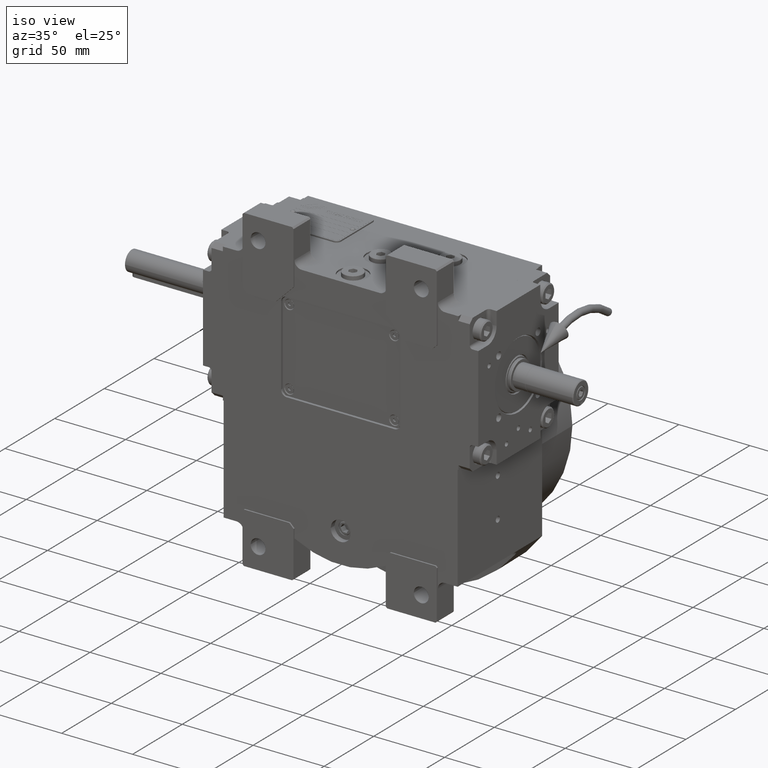
[diagram: clean part render]
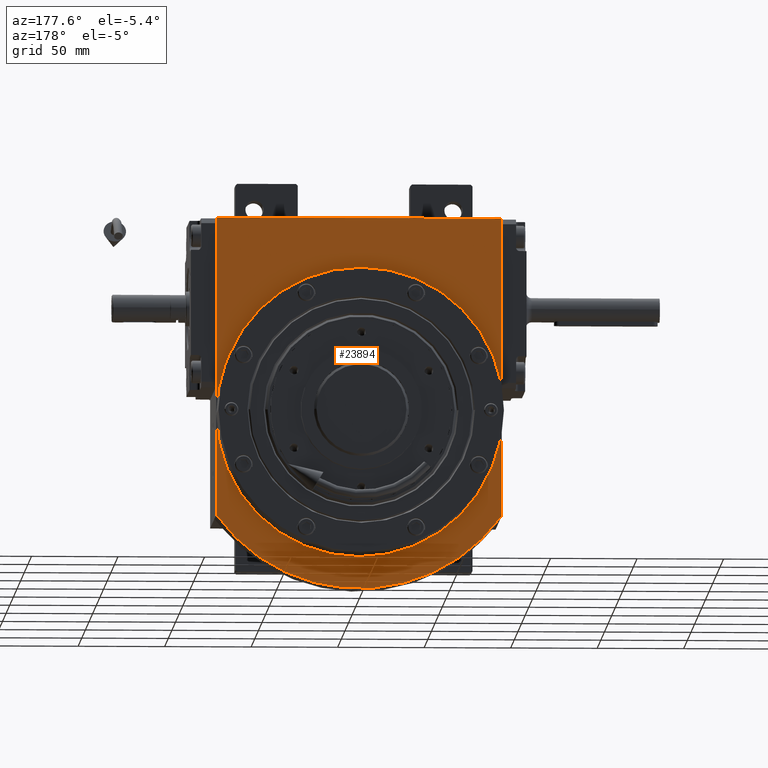
[diagram: tour spotlight — one face highlighted and labeled with its STEP entity id]
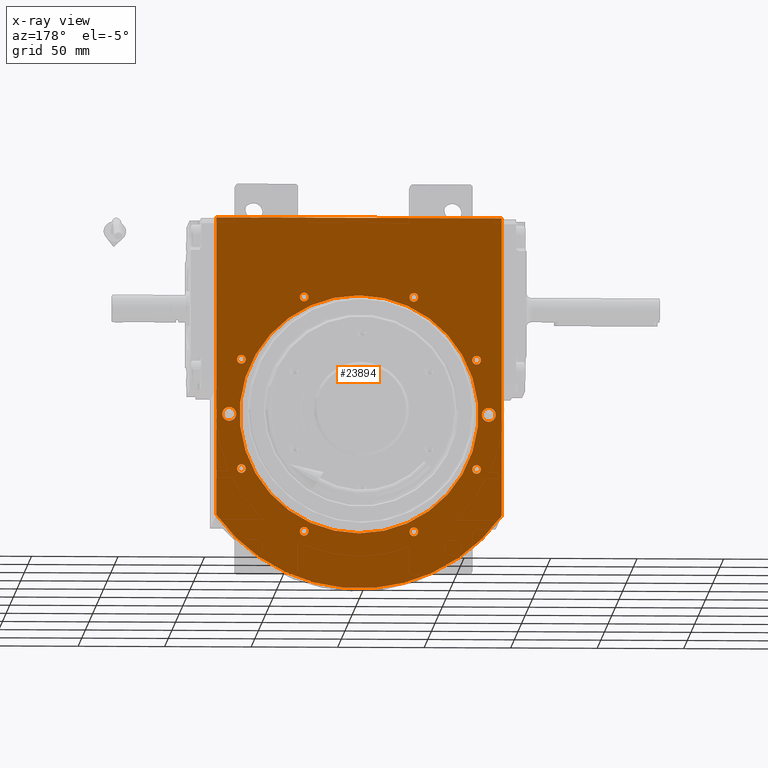
[diagram: x-ray of the same camera — body ghosted, this tour face saturated]
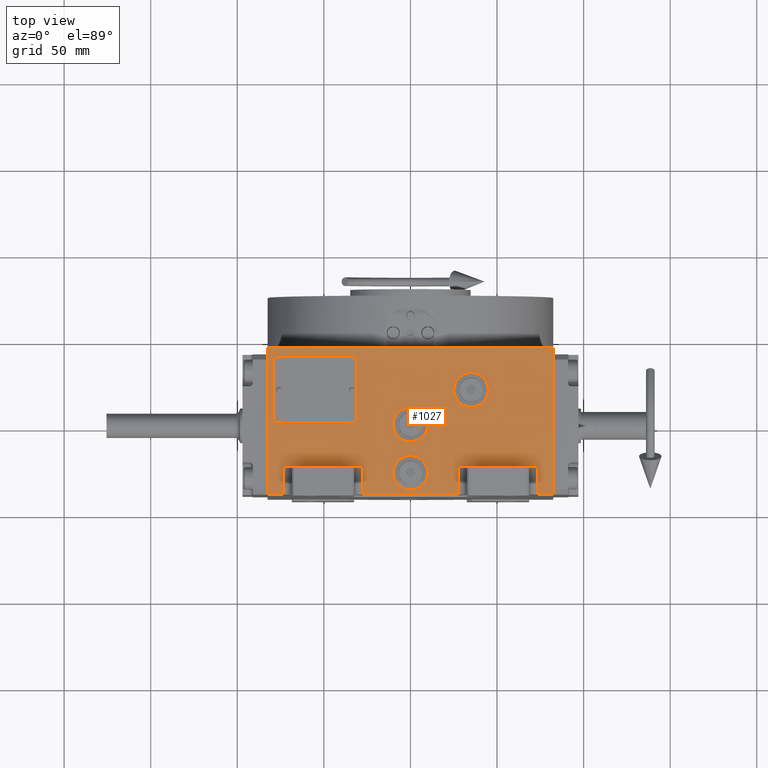
[diagram: tour spotlight — one face highlighted and labeled with its STEP entity id]
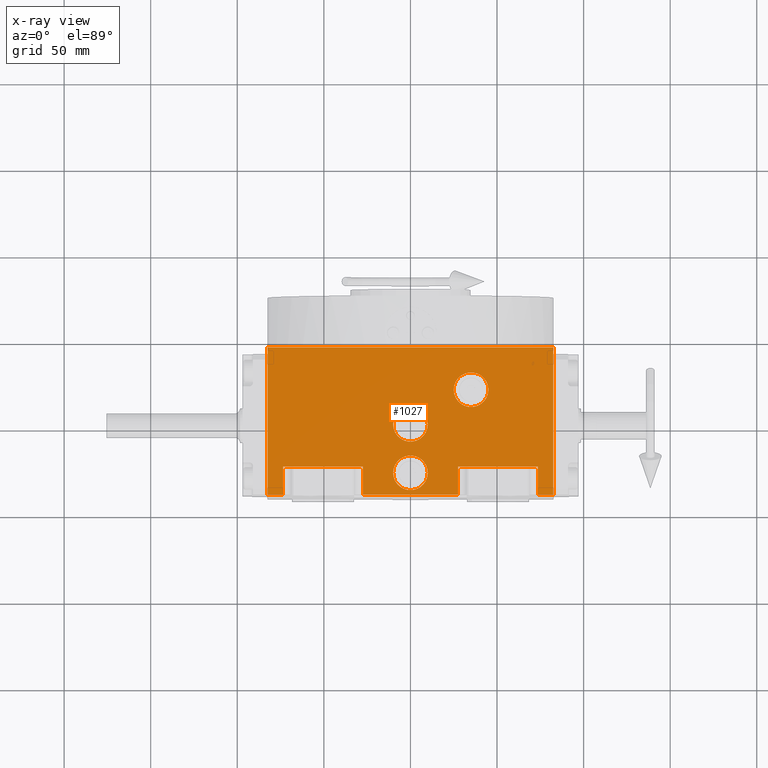
[diagram: x-ray of the same camera — body ghosted, this tour face saturated]
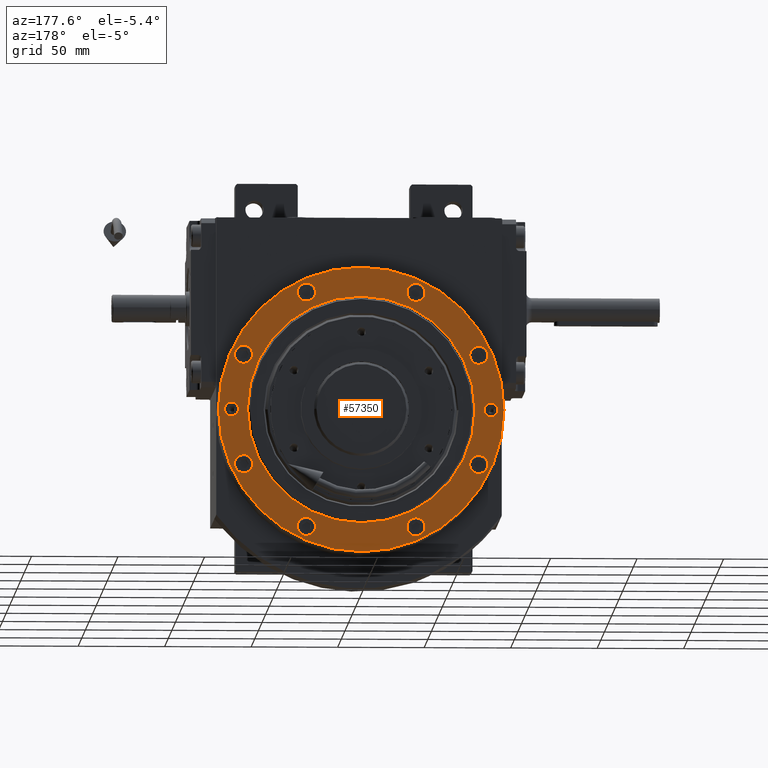
[diagram: tour spotlight — one face highlighted and labeled with its STEP entity id]
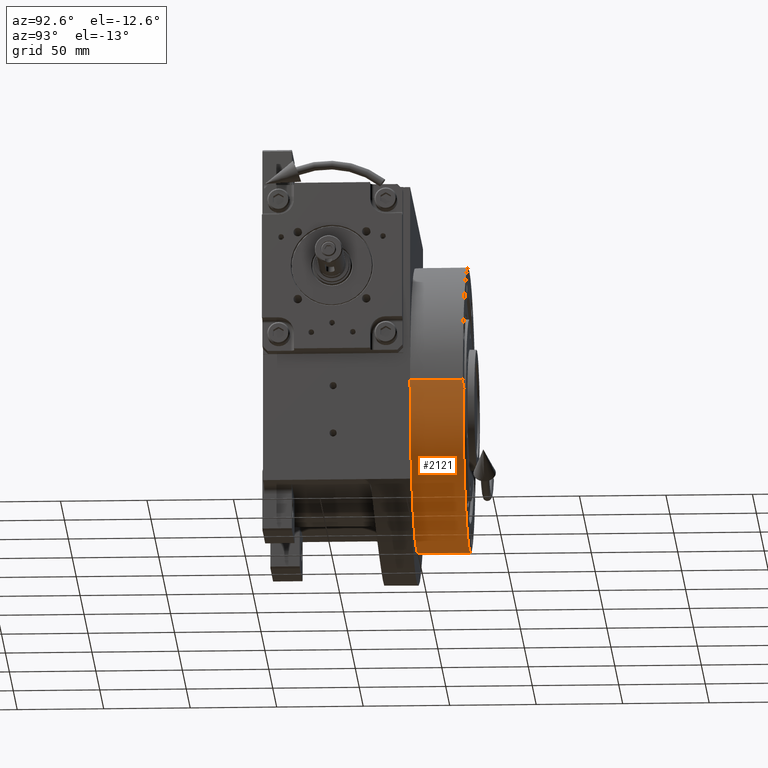
[diagram: tour spotlight — one face highlighted and labeled with its STEP entity id]
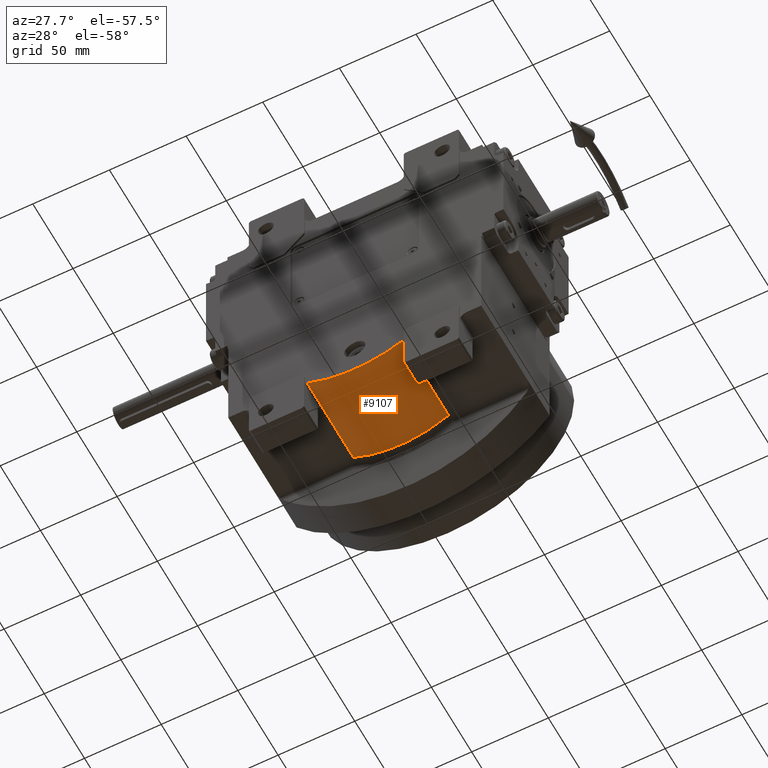
[diagram: tour spotlight — one face highlighted and labeled with its STEP entity id]
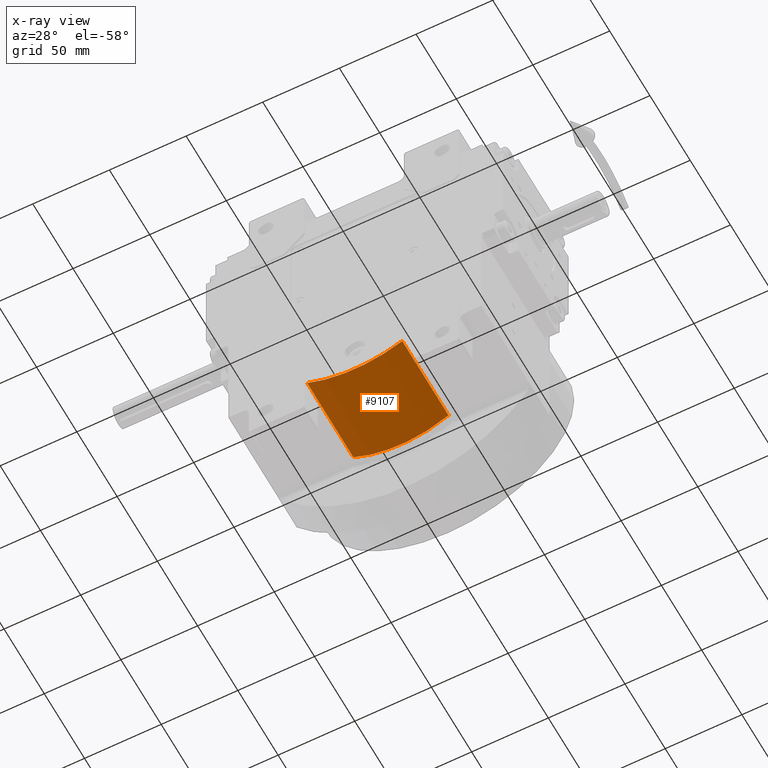
[diagram: x-ray of the same camera — body ghosted, this tour face saturated]
A machine part: a face-by-face anatomy tour. The part has 1919 B-rep faces; the first image is the clean iso view, then the 5 largest visible faces are spotlighted one at a time (largest first), each with its STEP entity span.

Face 1 — auxiliary view, entity #23894. An x-ray twin of the same camera follows (body ghosted, this face saturated) — the face is partly hidden behind the body. In plain terms, the highlighted planar face has unit normal (0, 1, 0).
Definition (entity closure, byte-faithful):
#932 = ORIENTED_EDGE ( 'NONE', *, *, #27804, .F. ) ;
#1138 = DIRECTION ( 'NONE',  ( 1.000000000000000000, 0.000000000000000000, 0.000000000000000000 ) ) ;
#1400 = ORIENTED_EDGE ( 'NONE', *, *, #55485, .F. ) ;
#1632 = ORIENTED_EDGE ( 'NONE', *, *, #46936, .T. ) ;
#1674 = VERTEX_POINT ( 'NONE', #19643 ) ;
#1716 = CIRCLE ( 'NONE', #31580, 69.00000000000000000 ) ;
#1822 = DIRECTION ( 'NONE',  ( 0.000000000000000000, 1.000000000000000000, 0.000000000000000000 ) ) ;
#2042 = EDGE_LOOP ( 'NONE', ( #4450, #35429 ) ) ;
#2135 = DIRECTION ( 'NONE',  ( 1.000000000000000000, 0.000000000000000000, 2.775557561562888984E-15 ) ) ;
#2288 = DIRECTION ( 'NONE',  ( -1.000000000000000000, 0.000000000000000000, 0.000000000000000000 ) ) ;
#2573 = EDGE_CURVE ( 'NONE', #25839, #39800, #17244, .T. ) ;
#2600 = CIRCLE ( 'NONE', #9823, 4.000000000000006217 ) ;
#2851 = CIRCLE ( 'NONE', #24498, 4.000000000000006217 ) ;
#3035 = EDGE_LOOP ( 'NONE', ( #3309, #932 ) ) ;
#3309 = ORIENTED_EDGE ( 'NONE', *, *, #18543, .F. ) ;
#3687 = AXIS2_PLACEMENT_3D ( 'NONE', #9237, #19249, #58892 ) ;
#3695 = FACE_OUTER_BOUND ( 'NONE', #17242, .T. ) ;
#4098 = CIRCLE ( 'NONE', #52475, 2.500000000000002220 ) ;
#4450 = ORIENTED_EDGE ( 'NONE', *, *, #59579, .F. ) ;
#4704 = VERTEX_POINT ( 'NONE', #14910 ) ;
#4806 = EDGE_LOOP ( 'NONE', ( #13830, #42923 ) ) ;
#4907 = CARTESIAN_POINT ( 'NONE',  ( -82.50000000000000000, 44.50000000000000000, -58.50000000000000000 ) ) ;
#5159 = CIRCLE ( 'NONE', #39120, 2.500000000000002220 ) ;
#5620 = AXIS2_PLACEMENT_3D ( 'NONE', #40524, #60159, #15990 ) ;
#6051 = CARTESIAN_POINT ( 'NONE',  ( -29.19636963055245005, 44.50000000000000000, -67.97308402774881131 ) ) ;
#6493 = DIRECTION ( 'NONE',  ( 0.000000000000000000, 1.000000000000000000, 0.000000000000000000 ) ) ;
#6984 = DIRECTION ( 'NONE',  ( 0.000000000000000000, 1.000000000000000000, 0.000000000000000000 ) ) ;
#7312 = CARTESIAN_POINT ( 'NONE',  ( -31.69636963055249979, 44.50000000000000000, -67.97308402774881131 ) ) ;
#8512 = PLANE ( 'NONE',  #53778 ) ;
#8569 = VERTEX_POINT ( 'NONE', #51074 ) ;
#8831 = FACE_BOUND ( 'NONE', #45836, .T. ) ;
#9175 = CIRCLE ( 'NONE', #13313, 2.500000000000002220 ) ;
#9237 = CARTESIAN_POINT ( 'NONE',  ( -75.00000000000000000, 44.50000000000000000, 0.000000000000000000 ) ) ;
#9519 = EDGE_CURVE ( 'NONE', #1674, #23690, #10118, .T. ) ;
#9574 = EDGE_CURVE ( 'NONE', #59533, #4704, #2600, .T. ) ;
#9595 = CIRCLE ( 'NONE', #11660, 2.500000000000002220 ) ;
#9823 = AXIS2_PLACEMENT_3D ( 'NONE', #50103, #24020, #43713 ) ;
#10118 = LINE ( 'NONE', #29177, #44841 ) ;
#10689 = EDGE_CURVE ( 'NONE', #50187, #12145, #25409, .T. ) ;
#11106 = CARTESIAN_POINT ( 'NONE',  ( -31.69636963055245360, 44.50000000000000000, 67.97308402774881131 ) ) ;
#11211 = VECTOR ( 'NONE', #54430, 1000.000000000000000 ) ;
#11311 = CARTESIAN_POINT ( 'NONE',  ( 67.97308402774881131, 44.50000000000000000, 31.69636963055249979 ) ) ;
#11345 = DIRECTION ( 'NONE',  ( -1.000000000000000000, 0.000000000000000000, 0.000000000000000000 ) ) ;
#11495 = DIRECTION ( 'NONE',  ( 0.000000000000000000, 0.000000000000000000, 1.000000000000000000 ) ) ;
#11660 = AXIS2_PLACEMENT_3D ( 'NONE', #42083, #36903, #56883 ) ;
#12145 = VERTEX_POINT ( 'NONE', #33706 ) ;
#12217 = CARTESIAN_POINT ( 'NONE',  ( 29.19636963055245005, 44.50000000000000000, -67.97308402774881131 ) ) ;
#12618 = DIRECTION ( 'NONE',  ( 0.000000000000000000, 1.000000000000000000, -0.000000000000000000 ) ) ;
#12963 = CIRCLE ( 'NONE', #3687, 4.000000000000006217 ) ;
#13034 = FACE_BOUND ( 'NONE', #46374, .T. ) ;
#13313 = AXIS2_PLACEMENT_3D ( 'NONE', #59168, #29848, #1138 ) ;
#13830 = ORIENTED_EDGE ( 'NONE', *, *, #38044, .F. ) ;
#14122 = CARTESIAN_POINT ( 'NONE',  ( -67.97308402774871183, 44.50000000000000000, 31.69636963055245360 ) ) ;
#14193 = AXIS2_PLACEMENT_3D ( 'NONE', #54338, #20497, #50142 ) ;
#14359 = CARTESIAN_POINT ( 'NONE',  ( -65.47308402774879710, 44.50000000000000000, -31.69636963055245360 ) ) ;
#14666 = EDGE_CURVE ( 'NONE', #21142, #35726, #38576, .T. ) ;
#14862 = DIRECTION ( 'NONE',  ( 0.000000000000000000, 0.000000000000000000, 1.000000000000000000 ) ) ;
#14910 = CARTESIAN_POINT ( 'NONE',  ( 75.00000000000000000, 44.50000000000000000, 4.000000000000006217 ) ) ;
#15397 = CIRCLE ( 'NONE', #44302, 2.500000000000002220 ) ;
#15409 = CARTESIAN_POINT ( 'NONE',  ( -82.50000000000000000, 44.50000000000000000, 114.0000000000000000 ) ) ;
#15858 = CARTESIAN_POINT ( 'NONE',  ( -67.97308402774881131, 44.50000000000000000, -31.69636963055245360 ) ) ;
#15990 = DIRECTION ( 'NONE',  ( 1.000000000000000000, 0.000000000000000000, 2.775557561562888984E-15 ) ) ;
#16032 = CARTESIAN_POINT ( 'NONE',  ( 70.47308402774881131, 44.50000000000000000, -31.69636963055249979 ) ) ;
#16091 = EDGE_LOOP ( 'NONE', ( #16998, #31483 ) ) ;
#16179 = CARTESIAN_POINT ( 'NONE',  ( -65.47308402774879710, 44.50000000000000000, 31.69636963055245360 ) ) ;
#16652 = EDGE_CURVE ( 'NONE', #61427, #28498, #38752, .T. ) ;
#16998 = ORIENTED_EDGE ( 'NONE', *, *, #38421, .F. ) ;
#17053 = EDGE_CURVE ( 'NONE', #18596, #24435, #1716, .T. ) ;
#17197 = CIRCLE ( 'NONE', #54320, 101.3235294117645822 ) ;
#17242 = EDGE_LOOP ( 'NONE', ( #20878, #17479, #1632, #26520 ) ) ;
#17244 = LINE ( 'NONE', #56591, #62047 ) ;
#17297 = DIRECTION ( 'NONE',  ( 0.8142235123367200789, 0.000000000000000000, -0.5805515239477501144 ) ) ;
#17479 = ORIENTED_EDGE ( 'NONE', *, *, #2573, .T. ) ;
#17908 = DIRECTION ( 'NONE',  ( 0.000000000000000000, 1.000000000000000000, 0.000000000000000000 ) ) ;
#18543 = EDGE_CURVE ( 'NONE', #31422, #61386, #4098, .T. ) ;
#18596 = VERTEX_POINT ( 'NONE', #34040 ) ;
#19197 = AXIS2_PLACEMENT_3D ( 'NONE', #47132, #60353, #32317 ) ;
#19249 = DIRECTION ( 'NONE',  ( 0.000000000000000000, 1.000000000000000000, 0.000000000000000000 ) ) ;
#19376 = CIRCLE ( 'NONE', #32768, 2.499999999999998668 ) ;
#19643 = CARTESIAN_POINT ( 'NONE',  ( 82.50000000000000000, 44.50000000000000000, 114.0000000000000000 ) ) ;
#20028 = CARTESIAN_POINT ( 'NONE',  ( 34.19636963055244649, 44.50000000000000000, -67.97308402774881131 ) ) ;
#20074 = CARTESIAN_POINT ( 'NONE',  ( -75.00000000000000000, 44.50000000000000000, 4.000000000000006217 ) ) ;
#20122 = DIRECTION ( 'NONE',  ( 0.000000000000000000, 1.000000000000000000, 0.000000000000000000 ) ) ;
#20247 = AXIS2_PLACEMENT_3D ( 'NONE', #56272, #1822, #41156 ) ;
#20497 = DIRECTION ( 'NONE',  ( 0.000000000000000000, 1.000000000000000000, 0.000000000000000000 ) ) ;
#20680 = CARTESIAN_POINT ( 'NONE',  ( 65.47308402774879710, 44.50000000000000000, 31.69636963055249979 ) ) ;
#20874 = CIRCLE ( 'NONE', #42499, 2.500000000000002220 ) ;
#20878 = ORIENTED_EDGE ( 'NONE', *, *, #54285, .T. ) ;
#20898 = CIRCLE ( 'NONE', #30165, 2.500000000000002220 ) ;
#21142 = VERTEX_POINT ( 'NONE', #12217 ) ;
#21209 = CARTESIAN_POINT ( 'NONE',  ( 31.69636963055245360, 44.50000000000000000, -67.97308402774881131 ) ) ;
#21231 = DIRECTION ( 'NONE',  ( 0.000000000000000000, 1.000000000000000000, 0.000000000000000000 ) ) ;
#21262 = EDGE_CURVE ( 'NONE', #59031, #52338, #20874, .T. ) ;
#21666 = ORIENTED_EDGE ( 'NONE', *, *, #35336, .F. ) ;
#21723 = CIRCLE ( 'NONE', #33033, 2.500000000000002220 ) ;
#21799 = CARTESIAN_POINT ( 'NONE',  ( -67.97308402774881131, 44.50000000000000000, 31.69636963055245360 ) ) ;
#21825 = DIRECTION ( 'NONE',  ( -1.000000000000000000, 0.000000000000000000, -2.775557561562888984E-15 ) ) ;
#22181 = CARTESIAN_POINT ( 'NONE',  ( 0.000000000000000000, 44.50000000000000000, 0.3235294117646390077 ) ) ;
#22829 = EDGE_LOOP ( 'NONE', ( #30725, #39953 ) ) ;
#23565 = AXIS2_PLACEMENT_3D ( 'NONE', #7312, #27014, #36351 ) ;
#23690 = VERTEX_POINT ( 'NONE', #53401 ) ;
#23894 = ADVANCED_FACE ( 'NONE', ( #61721, #33027, #52692, #47877, #27901, #57836, #53031, #8831, #27576, #13034, #32718, #3695 ), #8512, .T. ) ;
#24020 = DIRECTION ( 'NONE',  ( 0.000000000000000000, 1.000000000000000000, -0.000000000000000000 ) ) ;
#24435 = VERTEX_POINT ( 'NONE', #32336 ) ;
#24498 = AXIS2_PLACEMENT_3D ( 'NONE', #45736, #6984, #11495 ) ;
#24856 = ORIENTED_EDGE ( 'NONE', *, *, #31382, .F. ) ;
#24990 = DIRECTION ( 'NONE',  ( -1.647635329298784785E-16, 0.000000000000000000, -1.000000000000000000 ) ) ;
#25409 = CIRCLE ( 'NONE', #20247, 2.499999999999998668 ) ;
#25423 = DIRECTION ( 'NONE',  ( -1.000000000000000000, 0.000000000000000000, 0.000000000000000000 ) ) ;
#25839 = VERTEX_POINT ( 'NONE', #4907 ) ;
#26520 = ORIENTED_EDGE ( 'NONE', *, *, #9519, .T. ) ;
#26592 = EDGE_CURVE ( 'NONE', #35726, #21142, #9595, .T. ) ;
#27014 = DIRECTION ( 'NONE',  ( 0.000000000000000000, 1.000000000000000000, 0.000000000000000000 ) ) ;
#27120 = AXIS2_PLACEMENT_3D ( 'NONE', #40091, #20122, #11345 ) ;
#27576 = FACE_BOUND ( 'NONE', #60421, .T. ) ;
#27804 = EDGE_CURVE ( 'NONE', #61386, #31422, #61183, .T. ) ;
#27901 = FACE_BOUND ( 'NONE', #2042, .T. ) ;
#28498 = VERTEX_POINT ( 'NONE', #51343 ) ;
#28706 = VERTEX_POINT ( 'NONE', #20074 ) ;
#29177 = CARTESIAN_POINT ( 'NONE',  ( 82.50000000000000000, 44.50000000000000000, 114.0000000000000000 ) ) ;
#29723 = EDGE_CURVE ( 'NONE', #28706, #8569, #12963, .T. ) ;
#29819 = CARTESIAN_POINT ( 'NONE',  ( 70.47308402774881131, 44.50000000000000000, 31.69636963055249979 ) ) ;
#29848 = DIRECTION ( 'NONE',  ( 0.000000000000000000, 1.000000000000000000, 0.000000000000000000 ) ) ;
#29851 = CIRCLE ( 'NONE', #44254, 69.00000000000000000 ) ;
#29908 = ORIENTED_EDGE ( 'NONE', *, *, #14666, .F. ) ;
#30165 = AXIS2_PLACEMENT_3D ( 'NONE', #11106, #35632, #55922 ) ;
#30395 = CARTESIAN_POINT ( 'NONE',  ( 75.00000000000000000, 44.50000000000000000, -4.000000000000006217 ) ) ;
#30725 = ORIENTED_EDGE ( 'NONE', *, *, #17053, .T. ) ;
#30875 = CARTESIAN_POINT ( 'NONE',  ( 34.19636963055249623, 44.50000000000000000, 67.97308402774871183 ) ) ;
#31382 = EDGE_CURVE ( 'NONE', #8569, #28706, #2851, .T. ) ;
#31422 = VERTEX_POINT ( 'NONE', #33081 ) ;
#31483 = ORIENTED_EDGE ( 'NONE', *, *, #16652, .F. ) ;
#31580 = AXIS2_PLACEMENT_3D ( 'NONE', #45178, #39363, #14862 ) ;
#31630 = VERTEX_POINT ( 'NONE', #14359 ) ;
#32080 = DIRECTION ( 'NONE',  ( 1.000000000000000000, 0.000000000000000000, 0.000000000000000000 ) ) ;
#32317 = DIRECTION ( 'NONE',  ( 1.000000000000000000, 0.000000000000000000, 0.000000000000000000 ) ) ;
#32336 = CARTESIAN_POINT ( 'NONE',  ( 8.450062914116737844E-15, 44.50000000000000000, -69.00000000000000000 ) ) ;
#32386 = EDGE_CURVE ( 'NONE', #4704, #59533, #61596, .T. ) ;
#32427 = CARTESIAN_POINT ( 'NONE',  ( -29.19636963055245005, 44.50000000000000000, 67.97308402774881131 ) ) ;
#32633 = DIRECTION ( 'NONE',  ( 0.000000000000000000, 0.000000000000000000, -1.000000000000000000 ) ) ;
#32718 = FACE_BOUND ( 'NONE', #4806, .T. ) ;
#32768 = AXIS2_PLACEMENT_3D ( 'NONE', #54995, #35930, #55601 ) ;
#32860 = DIRECTION ( 'NONE',  ( 0.000000000000000000, 1.000000000000000000, 0.000000000000000000 ) ) ;
#33027 = FACE_BOUND ( 'NONE', #35501, .T. ) ;
#33033 = AXIS2_PLACEMENT_3D ( 'NONE', #11311, #6493, #2288 ) ;
#33081 = CARTESIAN_POINT ( 'NONE',  ( 65.47308402774879710, 44.50000000000000000, -31.69636963055249979 ) ) ;
#33267 = CARTESIAN_POINT ( 'NONE',  ( -82.50000000000000000, 44.50000000000000000, 114.0000000000000000 ) ) ;
#33706 = CARTESIAN_POINT ( 'NONE',  ( -34.19636963055244649, 44.50000000000000000, 67.97308402774881131 ) ) ;
#34040 = CARTESIAN_POINT ( 'NONE',  ( 0.000000000000000000, 44.50000000000000000, 69.00000000000000000 ) ) ;
#34247 = DIRECTION ( 'NONE',  ( -0.000000000000000000, -1.000000000000000000, -0.000000000000000000 ) ) ;
#34788 = EDGE_CURVE ( 'NONE', #56285, #39890, #9175, .T. ) ;
#35336 = EDGE_CURVE ( 'NONE', #31630, #50055, #15397, .T. ) ;
#35379 = ORIENTED_EDGE ( 'NONE', *, *, #26592, .F. ) ;
#35429 = ORIENTED_EDGE ( 'NONE', *, *, #34788, .F. ) ;
#35475 = ORIENTED_EDGE ( 'NONE', *, *, #21262, .F. ) ;
#35501 = EDGE_LOOP ( 'NONE', ( #53962, #24856 ) ) ;
#35519 = CARTESIAN_POINT ( 'NONE',  ( 0.000000000000000000, 44.50000000000000000, 0.000000000000000000 ) ) ;
#35632 = DIRECTION ( 'NONE',  ( 0.000000000000000000, 1.000000000000000000, 0.000000000000000000 ) ) ;
#35726 = VERTEX_POINT ( 'NONE', #20028 ) ;
#35930 = DIRECTION ( 'NONE',  ( 0.000000000000000000, 1.000000000000000000, 0.000000000000000000 ) ) ;
#36351 = DIRECTION ( 'NONE',  ( -1.000000000000000000, 0.000000000000000000, 0.000000000000000000 ) ) ;
#36903 = DIRECTION ( 'NONE',  ( 0.000000000000000000, 1.000000000000000000, 0.000000000000000000 ) ) ;
#37227 = DIRECTION ( 'NONE',  ( -0.000000000000000000, 1.000000000000000000, 0.000000000000000000 ) ) ;
#38006 = DIRECTION ( 'NONE',  ( -1.000000000000000000, 0.000000000000000000, 0.000000000000000000 ) ) ;
#38044 = EDGE_CURVE ( 'NONE', #12145, #50187, #20898, .T. ) ;
#38421 = EDGE_CURVE ( 'NONE', #28498, #61427, #41517, .T. ) ;
#38576 = CIRCLE ( 'NONE', #55065, 2.499999999999998668 ) ;
#38752 = CIRCLE ( 'NONE', #19197, 2.500000000000002220 ) ;
#39120 = AXIS2_PLACEMENT_3D ( 'NONE', #21799, #17908, #2135 ) ;
#39363 = DIRECTION ( 'NONE',  ( -0.000000000000000000, -1.000000000000000000, -0.000000000000000000 ) ) ;
#39800 = VERTEX_POINT ( 'NONE', #33267 ) ;
#39818 = CARTESIAN_POINT ( 'NONE',  ( -70.47308402774881131, 44.50000000000000000, 31.69636963055245360 ) ) ;
#39890 = VERTEX_POINT ( 'NONE', #20680 ) ;
#39953 = ORIENTED_EDGE ( 'NONE', *, *, #58215, .T. ) ;
#39965 = CIRCLE ( 'NONE', #14193, 2.500000000000002220 ) ;
#40062 = AXIS2_PLACEMENT_3D ( 'NONE', #46835, #12618, #32633 ) ;
#40091 = CARTESIAN_POINT ( 'NONE',  ( 31.69636963055249979, 44.50000000000000000, 67.97308402774871183 ) ) ;
#40199 = CARTESIAN_POINT ( 'NONE',  ( -70.47308402774881131, 44.50000000000000000, -31.69636963055245360 ) ) ;
#40524 = CARTESIAN_POINT ( 'NONE',  ( 67.97308402774871183, 44.50000000000000000, -31.69636963055249979 ) ) ;
#41156 = DIRECTION ( 'NONE',  ( 1.000000000000000000, 0.000000000000000000, 0.000000000000000000 ) ) ;
#41517 = CIRCLE ( 'NONE', #27120, 2.499999999999998668 ) ;
#42083 = CARTESIAN_POINT ( 'NONE',  ( 31.69636963055245360, 44.50000000000000000, -67.97308402774881131 ) ) ;
#42232 = EDGE_LOOP ( 'NONE', ( #54856, #49029 ) ) ;
#42499 = AXIS2_PLACEMENT_3D ( 'NONE', #14122, #32860, #38006 ) ;
#42923 = ORIENTED_EDGE ( 'NONE', *, *, #10689, .F. ) ;
#43713 = DIRECTION ( 'NONE',  ( 0.000000000000000000, 0.000000000000000000, -1.000000000000000000 ) ) ;
#44254 = AXIS2_PLACEMENT_3D ( 'NONE', #35519, #34247, #54540 ) ;
#44302 = AXIS2_PLACEMENT_3D ( 'NONE', #15858, #56141, #51292 ) ;
#44812 = LINE ( 'NONE', #15409, #11211 ) ;
#44841 = VECTOR ( 'NONE', #24990, 1000.000000000000000 ) ;
#45082 = DIRECTION ( 'NONE',  ( 0.000000000000000000, 1.000000000000000000, 0.000000000000000000 ) ) ;
#45178 = CARTESIAN_POINT ( 'NONE',  ( 0.000000000000000000, 44.50000000000000000, 0.000000000000000000 ) ) ;
#45526 = VERTEX_POINT ( 'NONE', #6051 ) ;
#45736 = CARTESIAN_POINT ( 'NONE',  ( -75.00000000000000000, 44.50000000000000000, 0.000000000000000000 ) ) ;
#45836 = EDGE_LOOP ( 'NONE', ( #61219, #56132 ) ) ;
#46332 = DIRECTION ( 'NONE',  ( 0.000000000000000000, 1.000000000000000000, 0.000000000000000000 ) ) ;
#46374 = EDGE_LOOP ( 'NONE', ( #35475, #47447 ) ) ;
#46835 = CARTESIAN_POINT ( 'NONE',  ( 75.00000000000000000, 44.50000000000000000, 0.000000000000000000 ) ) ;
#46936 = EDGE_CURVE ( 'NONE', #39800, #1674, #44812, .T. ) ;
#47081 = EDGE_CURVE ( 'NONE', #57758, #45526, #53421, .T. ) ;
#47132 = CARTESIAN_POINT ( 'NONE',  ( 31.69636963055249979, 44.50000000000000000, 67.97308402774871183 ) ) ;
#47447 = ORIENTED_EDGE ( 'NONE', *, *, #58812, .F. ) ;
#47877 = FACE_BOUND ( 'NONE', #16091, .T. ) ;
#49029 = ORIENTED_EDGE ( 'NONE', *, *, #9574, .F. ) ;
#50055 = VERTEX_POINT ( 'NONE', #40199 ) ;
#50103 = CARTESIAN_POINT ( 'NONE',  ( 75.00000000000000000, 44.50000000000000000, 0.000000000000000000 ) ) ;
#50142 = DIRECTION ( 'NONE',  ( -1.000000000000000000, 0.000000000000000000, -2.775557561562888984E-15 ) ) ;
#50187 = VERTEX_POINT ( 'NONE', #32427 ) ;
#51074 = CARTESIAN_POINT ( 'NONE',  ( -75.00000000000000000, 44.50000000000000000, -4.000000000000006217 ) ) ;
#51292 = DIRECTION ( 'NONE',  ( 1.000000000000000000, 0.000000000000000000, 2.775557561562888984E-15 ) ) ;
#51343 = CARTESIAN_POINT ( 'NONE',  ( 29.19636963055250334, 44.50000000000000000, 67.97308402774871183 ) ) ;
#51756 = DIRECTION ( 'NONE',  ( 0.000000000000000000, 0.000000000000000000, 1.000000000000000000 ) ) ;
#52338 = VERTEX_POINT ( 'NONE', #16179 ) ;
#52427 = CARTESIAN_POINT ( 'NONE',  ( 67.97308402774881131, 44.50000000000000000, -31.69636963055249979 ) ) ;
#52475 = AXIS2_PLACEMENT_3D ( 'NONE', #52427, #46332, #21825 ) ;
#52692 = FACE_BOUND ( 'NONE', #42232, .T. ) ;
#53031 = FACE_BOUND ( 'NONE', #57354, .T. ) ;
#53401 = CARTESIAN_POINT ( 'NONE',  ( 82.50000000000000000, 44.50000000000000000, -58.50000000000000000 ) ) ;
#53421 = CIRCLE ( 'NONE', #23565, 2.500000000000002220 ) ;
#53778 = AXIS2_PLACEMENT_3D ( 'NONE', #62362, #37227, #32080 ) ;
#53962 = ORIENTED_EDGE ( 'NONE', *, *, #29723, .F. ) ;
#54285 = EDGE_CURVE ( 'NONE', #23690, #25839, #17197, .T. ) ;
#54320 = AXIS2_PLACEMENT_3D ( 'NONE', #22181, #21231, #17297 ) ;
#54338 = CARTESIAN_POINT ( 'NONE',  ( -67.97308402774881131, 44.50000000000000000, -31.69636963055245360 ) ) ;
#54430 = DIRECTION ( 'NONE',  ( 1.000000000000000000, 0.000000000000000000, 0.000000000000000000 ) ) ;
#54540 = DIRECTION ( 'NONE',  ( 0.000000000000000000, 0.000000000000000000, 1.000000000000000000 ) ) ;
#54856 = ORIENTED_EDGE ( 'NONE', *, *, #32386, .F. ) ;
#54995 = CARTESIAN_POINT ( 'NONE',  ( -31.69636963055249979, 44.50000000000000000, -67.97308402774881131 ) ) ;
#55065 = AXIS2_PLACEMENT_3D ( 'NONE', #21209, #45082, #25423 ) ;
#55485 = EDGE_CURVE ( 'NONE', #50055, #31630, #39965, .T. ) ;
#55583 = EDGE_CURVE ( 'NONE', #45526, #57758, #19376, .T. ) ;
#55601 = DIRECTION ( 'NONE',  ( 1.000000000000000000, 0.000000000000000000, -5.551115123125785858E-15 ) ) ;
#55922 = DIRECTION ( 'NONE',  ( -1.000000000000000000, 0.000000000000000000, 0.000000000000000000 ) ) ;
#56132 = ORIENTED_EDGE ( 'NONE', *, *, #55583, .F. ) ;
#56141 = DIRECTION ( 'NONE',  ( 0.000000000000000000, 1.000000000000000000, 0.000000000000000000 ) ) ;
#56272 = CARTESIAN_POINT ( 'NONE',  ( -31.69636963055245360, 44.50000000000000000, 67.97308402774881131 ) ) ;
#56285 = VERTEX_POINT ( 'NONE', #29819 ) ;
#56591 = CARTESIAN_POINT ( 'NONE',  ( -82.50000000000000000, 44.50000000000000000, -58.50000000000000000 ) ) ;
#56883 = DIRECTION ( 'NONE',  ( 1.000000000000000000, 0.000000000000000000, 0.000000000000000000 ) ) ;
#57354 = EDGE_LOOP ( 'NONE', ( #29908, #35379 ) ) ;
#57758 = VERTEX_POINT ( 'NONE', #59763 ) ;
#57836 = FACE_BOUND ( 'NONE', #3035, .T. ) ;
#58215 = EDGE_CURVE ( 'NONE', #24435, #18596, #29851, .T. ) ;
#58812 = EDGE_CURVE ( 'NONE', #52338, #59031, #5159, .T. ) ;
#58892 = DIRECTION ( 'NONE',  ( 0.000000000000000000, 0.000000000000000000, 1.000000000000000000 ) ) ;
#59031 = VERTEX_POINT ( 'NONE', #39818 ) ;
#59168 = CARTESIAN_POINT ( 'NONE',  ( 67.97308402774881131, 44.50000000000000000, 31.69636963055249979 ) ) ;
#59533 = VERTEX_POINT ( 'NONE', #30395 ) ;
#59579 = EDGE_CURVE ( 'NONE', #39890, #56285, #21723, .T. ) ;
#59763 = CARTESIAN_POINT ( 'NONE',  ( -34.19636963055249623, 44.50000000000000000, -67.97308402774881131 ) ) ;
#60159 = DIRECTION ( 'NONE',  ( 0.000000000000000000, 1.000000000000000000, 0.000000000000000000 ) ) ;
#60353 = DIRECTION ( 'NONE',  ( 0.000000000000000000, 1.000000000000000000, 0.000000000000000000 ) ) ;
#60421 = EDGE_LOOP ( 'NONE', ( #1400, #21666 ) ) ;
#61183 = CIRCLE ( 'NONE', #5620, 2.500000000000002220 ) ;
#61219 = ORIENTED_EDGE ( 'NONE', *, *, #47081, .F. ) ;
#61386 = VERTEX_POINT ( 'NONE', #16032 ) ;
#61427 = VERTEX_POINT ( 'NONE', #30875 ) ;
#61596 = CIRCLE ( 'NONE', #40062, 4.000000000000006217 ) ;
#61721 = FACE_BOUND ( 'NONE', #22829, .T. ) ;
#62047 = VECTOR ( 'NONE', #51756, 1000.000000000000000 ) ;
#62362 = CARTESIAN_POINT ( 'NONE',  ( 0.000000000000000000, 44.50000000000000000, 0.000000000000000000 ) ) ;

Face 2 — top view, entity #1027. An x-ray twin of the same camera follows (body ghosted, this face saturated) — the face is partly hidden behind the body. In plain terms, the highlighted planar face has unit normal (0, 0, 1).
Definition (entity closure, byte-faithful):
#208 = CARTESIAN_POINT ( 'NONE',  ( 45.00000000000000000, 20.00000000000000000, 114.0000000000000000 ) ) ;
#443 = VECTOR ( 'NONE', #36194, 1000.000000000000000 ) ;
#1027 = ADVANCED_FACE ( 'NONE', ( #12010, #61638, #26863, #31692 ), #52616, .T. ) ;
#1346 = AXIS2_PLACEMENT_3D ( 'NONE', #21757, #31748, #50777 ) ;
#1674 = VERTEX_POINT ( 'NONE', #19643 ) ;
#2085 = CARTESIAN_POINT ( 'NONE',  ( 73.50000000000000000, -40.50000000000000000, 114.0000000000000000 ) ) ;
#2230 = DIRECTION ( 'NONE',  ( -1.000000000000000000, -3.469446951953614189E-16, 0.000000000000000000 ) ) ;
#2342 = CARTESIAN_POINT ( 'NONE',  ( 0.000000000000000000, -8.881784197001250351E-16, 114.0000000000000000 ) ) ;
#3156 = EDGE_CURVE ( 'NONE', #16830, #34622, #6507, .T. ) ;
#3347 = CIRCLE ( 'NONE', #56858, 10.00000000000000178 ) ;
#3375 = LINE ( 'NONE', #23072, #11215 ) ;
#3595 = CARTESIAN_POINT ( 'NONE',  ( 82.50000000000000000, -40.50000000000000000, 114.0000000000000000 ) ) ;
#4059 = CARTESIAN_POINT ( 'NONE',  ( 35.00000000000000000, 20.00000000000000000, 114.0000000000000000 ) ) ;
#4141 = ORIENTED_EDGE ( 'NONE', *, *, #46936, .F. ) ;
#4224 = DIRECTION ( 'NONE',  ( 0.000000000000000000, 1.000000000000000000, 0.000000000000000000 ) ) ;
#4375 = CARTESIAN_POINT ( 'NONE',  ( 27.49999999999934630, -40.50000000000000000, 114.0000000000000000 ) ) ;
#5418 = CIRCLE ( 'NONE', #25013, 10.00000000000000000 ) ;
#5824 = VERTEX_POINT ( 'NONE', #44914 ) ;
#6458 = CARTESIAN_POINT ( 'NONE',  ( -27.49999999999934630, -40.50000000000000000, 114.0000000000000000 ) ) ;
#6466 = ORIENTED_EDGE ( 'NONE', *, *, #56173, .T. ) ;
#6507 = CIRCLE ( 'NONE', #25102, 10.00000000000000178 ) ;
#7096 = AXIS2_PLACEMENT_3D ( 'NONE', #7165, #41708, #46517 ) ;
#7165 = CARTESIAN_POINT ( 'NONE',  ( -82.50000000000000000, -40.50000000000000000, 114.0000000000000000 ) ) ;
#7374 = EDGE_CURVE ( 'NONE', #60946, #44097, #42687, .T. ) ;
#7628 = AXIS2_PLACEMENT_3D ( 'NONE', #24844, #18691, #53519 ) ;
#7641 = LINE ( 'NONE', #57587, #49363 ) ;
#7839 = LINE ( 'NONE', #8460, #39571 ) ;
#8460 = CARTESIAN_POINT ( 'NONE',  ( 27.49999999999934630, -24.50000000000000000, 114.0000000000000000 ) ) ;
#8494 = DIRECTION ( 'NONE',  ( 1.000000000000000000, 0.000000000000000000, 0.000000000000000000 ) ) ;
#9529 = ORIENTED_EDGE ( 'NONE', *, *, #14398, .F. ) ;
#9753 = LINE ( 'NONE', #54242, #35073 ) ;
#10786 = AXIS2_PLACEMENT_3D ( 'NONE', #32200, #61215, #2230 ) ;
#11211 = VECTOR ( 'NONE', #54430, 1000.000000000000000 ) ;
#11215 = VECTOR ( 'NONE', #42408, 1000.000000000000000 ) ;
#11385 = VERTEX_POINT ( 'NONE', #38768 ) ;
#12010 = FACE_BOUND ( 'NONE', #27995, .T. ) ;
#12227 = DIRECTION ( 'NONE',  ( 1.000000000000000000, 0.000000000000000000, 0.000000000000000000 ) ) ;
#14137 = EDGE_CURVE ( 'NONE', #23745, #14992, #7839, .T. ) ;
#14398 = EDGE_CURVE ( 'NONE', #44097, #60946, #25220, .T. ) ;
#14659 = ORIENTED_EDGE ( 'NONE', *, *, #14137, .F. ) ;
#14709 = VERTEX_POINT ( 'NONE', #24776 ) ;
#14992 = VERTEX_POINT ( 'NONE', #4375 ) ;
#15278 = CARTESIAN_POINT ( 'NONE',  ( -27.49999999999934630, -40.50000000000000000, 114.0000000000000000 ) ) ;
#15308 = EDGE_CURVE ( 'NONE', #43102, #11385, #41746, .T. ) ;
#15409 = CARTESIAN_POINT ( 'NONE',  ( -82.50000000000000000, 44.50000000000000000, 114.0000000000000000 ) ) ;
#16830 = VERTEX_POINT ( 'NONE', #52282 ) ;
#16844 = CARTESIAN_POINT ( 'NONE',  ( -73.50000000000000000, -24.50000000000000000, 114.0000000000000000 ) ) ;
#17150 = CARTESIAN_POINT ( 'NONE',  ( -10.00000000000000000, 0.000000000000000000, 114.0000000000000000 ) ) ;
#17711 = EDGE_CURVE ( 'NONE', #33607, #36626, #7641, .T. ) ;
#18156 = EDGE_LOOP ( 'NONE', ( #47189, #35891 ) ) ;
#18691 = DIRECTION ( 'NONE',  ( 0.000000000000000000, 0.000000000000000000, 1.000000000000000000 ) ) ;
#19206 = CARTESIAN_POINT ( 'NONE',  ( -73.50000000000000000, -40.50000000000000000, 114.0000000000000000 ) ) ;
#19450 = ORIENTED_EDGE ( 'NONE', *, *, #40927, .T. ) ;
#19643 = CARTESIAN_POINT ( 'NONE',  ( 82.50000000000000000, 44.50000000000000000, 114.0000000000000000 ) ) ;
#21020 = VERTEX_POINT ( 'NONE', #45822 ) ;
#21744 = DIRECTION ( 'NONE',  ( 0.000000000000000000, 1.000000000000000000, 0.000000000000000000 ) ) ;
#21757 = CARTESIAN_POINT ( 'NONE',  ( 0.000000000000000000, 3.552713678800499352E-15, 114.0000000000000000 ) ) ;
#22023 = DIRECTION ( 'NONE',  ( -1.000000000000000000, 8.881784197001247886E-17, 0.000000000000000000 ) ) ;
#22292 = DIRECTION ( 'NONE',  ( 0.000000000000000000, 1.000000000000000000, 0.000000000000000000 ) ) ;
#22600 = VECTOR ( 'NONE', #31426, 1000.000000000000000 ) ;
#23072 = CARTESIAN_POINT ( 'NONE',  ( -73.50000000000000000, -24.50000000000000000, 114.0000000000000000 ) ) ;
#23743 = DIRECTION ( 'NONE',  ( 0.000000000000000000, 0.000000000000000000, 1.000000000000000000 ) ) ;
#23745 = VERTEX_POINT ( 'NONE', #49218 ) ;
#24456 = CARTESIAN_POINT ( 'NONE',  ( -10.00000000000000000, -28.00000000000000000, 114.0000000000000000 ) ) ;
#24638 = LINE ( 'NONE', #48166, #41018 ) ;
#24776 = CARTESIAN_POINT ( 'NONE',  ( 82.50000000000000000, -40.50000000000000000, 114.0000000000000000 ) ) ;
#24844 = CARTESIAN_POINT ( 'NONE',  ( 0.000000000000000000, -28.00000000000000000, 114.0000000000000000 ) ) ;
#25013 = AXIS2_PLACEMENT_3D ( 'NONE', #2342, #51649, #22023 ) ;
#25102 = AXIS2_PLACEMENT_3D ( 'NONE', #34507, #48683, #48361 ) ;
#25200 = CARTESIAN_POINT ( 'NONE',  ( 10.00000000000000000, -28.00000000000000000, 114.0000000000000000 ) ) ;
#25220 = CIRCLE ( 'NONE', #10786, 10.00000000000000000 ) ;
#26727 = ORIENTED_EDGE ( 'NONE', *, *, #15308, .F. ) ;
#26863 = FACE_BOUND ( 'NONE', #60250, .T. ) ;
#27043 = VERTEX_POINT ( 'NONE', #17150 ) ;
#27203 = LINE ( 'NONE', #46519, #443 ) ;
#27335 = DIRECTION ( 'NONE',  ( 0.000000000000000000, -1.000000000000000000, 0.000000000000000000 ) ) ;
#27785 = LINE ( 'NONE', #51622, #54324 ) ;
#27995 = EDGE_LOOP ( 'NONE', ( #48187, #9529 ) ) ;
#30364 = EDGE_LOOP ( 'NONE', ( #36764, #26727, #50268, #47638, #4141, #63485, #19450, #36096, #6466, #54888, #33772, #14659 ) ) ;
#31426 = DIRECTION ( 'NONE',  ( 0.000000000000000000, 1.000000000000000000, 0.000000000000000000 ) ) ;
#31692 = FACE_OUTER_BOUND ( 'NONE', #30364, .T. ) ;
#31748 = DIRECTION ( 'NONE',  ( 0.000000000000000000, 0.000000000000000000, 1.000000000000000000 ) ) ;
#32008 = EDGE_CURVE ( 'NONE', #43102, #14709, #24638, .T. ) ;
#32200 = CARTESIAN_POINT ( 'NONE',  ( 0.000000000000000000, -28.00000000000000000, 114.0000000000000000 ) ) ;
#33267 = CARTESIAN_POINT ( 'NONE',  ( -82.50000000000000000, 44.50000000000000000, 114.0000000000000000 ) ) ;
#33607 = VERTEX_POINT ( 'NONE', #16844 ) ;
#33772 = ORIENTED_EDGE ( 'NONE', *, *, #40064, .T. ) ;
#34507 = CARTESIAN_POINT ( 'NONE',  ( 35.00000000000000000, 20.00000000000000000, 114.0000000000000000 ) ) ;
#34622 = VERTEX_POINT ( 'NONE', #208 ) ;
#34923 = EDGE_CURVE ( 'NONE', #45802, #39800, #46547, .T. ) ;
#35073 = VECTOR ( 'NONE', #22292, 1000.000000000000000 ) ;
#35891 = ORIENTED_EDGE ( 'NONE', *, *, #39594, .F. ) ;
#35913 = CARTESIAN_POINT ( 'NONE',  ( -82.50000000000000000, -40.50000000000000000, 114.0000000000000000 ) ) ;
#36096 = ORIENTED_EDGE ( 'NONE', *, *, #17711, .F. ) ;
#36194 = DIRECTION ( 'NONE',  ( 1.000000000000000000, 0.000000000000000000, 0.000000000000000000 ) ) ;
#36328 = VECTOR ( 'NONE', #12227, 1000.000000000000000 ) ;
#36626 = VERTEX_POINT ( 'NONE', #19206 ) ;
#36764 = ORIENTED_EDGE ( 'NONE', *, *, #43390, .T. ) ;
#38473 = DIRECTION ( 'NONE',  ( -8.881784197001250351E-16, -1.000000000000000000, 0.000000000000000000 ) ) ;
#38768 = CARTESIAN_POINT ( 'NONE',  ( 73.50000000000000000, -24.50000000000000000, 114.0000000000000000 ) ) ;
#38980 = VECTOR ( 'NONE', #4224, 1000.000000000000000 ) ;
#39213 = CARTESIAN_POINT ( 'NONE',  ( 73.50000000000000000, -40.50000000000000000, 114.0000000000000000 ) ) ;
#39446 = CIRCLE ( 'NONE', #1346, 10.00000000000000000 ) ;
#39571 = VECTOR ( 'NONE', #38473, 1000.000000000000000 ) ;
#39594 = EDGE_CURVE ( 'NONE', #27043, #5824, #5418, .T. ) ;
#39800 = VERTEX_POINT ( 'NONE', #33267 ) ;
#40064 = EDGE_CURVE ( 'NONE', #50429, #14992, #56400, .T. ) ;
#40927 = EDGE_CURVE ( 'NONE', #45802, #36626, #27203, .T. ) ;
#41018 = VECTOR ( 'NONE', #8494, 1000.000000000000000 ) ;
#41672 = DIRECTION ( 'NONE',  ( 1.000000000000000000, 0.000000000000000000, 0.000000000000000000 ) ) ;
#41708 = DIRECTION ( 'NONE',  ( 0.000000000000000000, 0.000000000000000000, 1.000000000000000000 ) ) ;
#41746 = LINE ( 'NONE', #2085, #58183 ) ;
#42408 = DIRECTION ( 'NONE',  ( 1.000000000000000000, 0.000000000000000000, 0.000000000000000000 ) ) ;
#42687 = CIRCLE ( 'NONE', #7628, 10.00000000000000000 ) ;
#43102 = VERTEX_POINT ( 'NONE', #39213 ) ;
#43390 = EDGE_CURVE ( 'NONE', #23745, #11385, #27785, .T. ) ;
#44097 = VERTEX_POINT ( 'NONE', #24456 ) ;
#44812 = LINE ( 'NONE', #15409, #11211 ) ;
#44914 = CARTESIAN_POINT ( 'NONE',  ( 10.00000000000000000, -1.072081766451089851E-15, 114.0000000000000000 ) ) ;
#44936 = EDGE_CURVE ( 'NONE', #14709, #1674, #48400, .T. ) ;
#45802 = VERTEX_POINT ( 'NONE', #52439 ) ;
#45822 = CARTESIAN_POINT ( 'NONE',  ( -27.49999999999934630, -24.50000000000000000, 114.0000000000000000 ) ) ;
#46517 = DIRECTION ( 'NONE',  ( 1.000000000000000000, 0.000000000000000000, 0.000000000000000000 ) ) ;
#46519 = CARTESIAN_POINT ( 'NONE',  ( -82.50000000000000000, -40.50000000000000000, 114.0000000000000000 ) ) ;
#46547 = LINE ( 'NONE', #35913, #22600 ) ;
#46936 = EDGE_CURVE ( 'NONE', #39800, #1674, #44812, .T. ) ;
#47189 = ORIENTED_EDGE ( 'NONE', *, *, #61919, .F. ) ;
#47596 = DIRECTION ( 'NONE',  ( 1.000000000000000000, 3.469446951953613696E-16, 0.000000000000000000 ) ) ;
#47638 = ORIENTED_EDGE ( 'NONE', *, *, #44936, .T. ) ;
#48166 = CARTESIAN_POINT ( 'NONE',  ( 73.50000000000000000, -40.50000000000000000, 114.0000000000000000 ) ) ;
#48187 = ORIENTED_EDGE ( 'NONE', *, *, #7374, .F. ) ;
#48361 = DIRECTION ( 'NONE',  ( -1.000000000000000000, -3.469446951953613696E-16, 0.000000000000000000 ) ) ;
#48400 = LINE ( 'NONE', #3595, #38980 ) ;
#48683 = DIRECTION ( 'NONE',  ( 0.000000000000000000, 0.000000000000000000, 1.000000000000000000 ) ) ;
#49218 = CARTESIAN_POINT ( 'NONE',  ( 27.49999999999934630, -24.50000000000000000, 114.0000000000000000 ) ) ;
#49363 = VECTOR ( 'NONE', #27335, 1000.000000000000000 ) ;
#50268 = ORIENTED_EDGE ( 'NONE', *, *, #32008, .T. ) ;
#50429 = VERTEX_POINT ( 'NONE', #15278 ) ;
#50777 = DIRECTION ( 'NONE',  ( 1.000000000000000000, -3.552713678800500140E-16, 0.000000000000000000 ) ) ;
#51622 = CARTESIAN_POINT ( 'NONE',  ( 27.49999999999934630, -24.50000000000000000, 114.0000000000000000 ) ) ;
#51649 = DIRECTION ( 'NONE',  ( 0.000000000000000000, 0.000000000000000000, 1.000000000000000000 ) ) ;
#52282 = CARTESIAN_POINT ( 'NONE',  ( 25.00000000000000000, 20.00000000000000000, 114.0000000000000000 ) ) ;
#52439 = CARTESIAN_POINT ( 'NONE',  ( -82.50000000000000000, -40.50000000000000000, 114.0000000000000000 ) ) ;
#52616 = PLANE ( 'NONE',  #7096 ) ;
#53519 = DIRECTION ( 'NONE',  ( 1.000000000000000000, 0.000000000000000000, 0.000000000000000000 ) ) ;
#54242 = CARTESIAN_POINT ( 'NONE',  ( -27.49999999999934630, -40.50000000000000000, 114.0000000000000000 ) ) ;
#54324 = VECTOR ( 'NONE', #41672, 1000.000000000000000 ) ;
#54430 = DIRECTION ( 'NONE',  ( 1.000000000000000000, 0.000000000000000000, 0.000000000000000000 ) ) ;
#54888 = ORIENTED_EDGE ( 'NONE', *, *, #59570, .F. ) ;
#55901 = ORIENTED_EDGE ( 'NONE', *, *, #61642, .F. ) ;
#56173 = EDGE_CURVE ( 'NONE', #33607, #21020, #3375, .T. ) ;
#56400 = LINE ( 'NONE', #6458, #36328 ) ;
#56858 = AXIS2_PLACEMENT_3D ( 'NONE', #4059, #23743, #47596 ) ;
#57068 = ORIENTED_EDGE ( 'NONE', *, *, #3156, .F. ) ;
#57587 = CARTESIAN_POINT ( 'NONE',  ( -73.50000000000000000, -24.50000000000000000, 114.0000000000000000 ) ) ;
#58183 = VECTOR ( 'NONE', #21744, 1000.000000000000000 ) ;
#59570 = EDGE_CURVE ( 'NONE', #50429, #21020, #9753, .T. ) ;
#60250 = EDGE_LOOP ( 'NONE', ( #55901, #57068 ) ) ;
#60946 = VERTEX_POINT ( 'NONE', #25200 ) ;
#61215 = DIRECTION ( 'NONE',  ( 0.000000000000000000, 0.000000000000000000, 1.000000000000000000 ) ) ;
#61638 = FACE_BOUND ( 'NONE', #18156, .T. ) ;
#61642 = EDGE_CURVE ( 'NONE', #34622, #16830, #3347, .T. ) ;
#61919 = EDGE_CURVE ( 'NONE', #5824, #27043, #39446, .T. ) ;
#63485 = ORIENTED_EDGE ( 'NONE', *, *, #34923, .F. ) ;

Face 3 — auxiliary view, entity #57350. In plain terms, the highlighted planar face has unit normal (0, 1, 0).
Definition (entity closure, byte-faithful):
#510 = EDGE_LOOP ( 'NONE', ( #32000, #3144 ) ) ;
#538 = ORIENTED_EDGE ( 'NONE', *, *, #34055, .F. ) ;
#574 = FACE_BOUND ( 'NONE', #11675, .T. ) ;
#782 = CARTESIAN_POINT ( 'NONE',  ( -26.44636963054999867, 67.97308402775000502, 30.49999999999999289 ) ) ;
#1670 = DIRECTION ( 'NONE',  ( 0.000000000000000000, 0.000000000000000000, 1.000000000000000000 ) ) ;
#2242 = CARTESIAN_POINT ( 'NONE',  ( 31.69636963055000223, 67.97308402775000502, 30.49999999999999289 ) ) ;
#2843 = EDGE_CURVE ( 'NONE', #62127, #63561, #4496, .T. ) ;
#3144 = ORIENTED_EDGE ( 'NONE', *, *, #11136, .T. ) ;
#3285 = CARTESIAN_POINT ( 'NONE',  ( 31.69636963055000223, 67.97308402775000502, 30.49999999999999289 ) ) ;
#3298 = CIRCLE ( 'NONE', #15670, 5.249999999999997335 ) ;
#3820 = ORIENTED_EDGE ( 'NONE', *, *, #50992, .T. ) ;
#3868 = DIRECTION ( 'NONE',  ( 0.000000000000000000, 0.000000000000000000, 1.000000000000000000 ) ) ;
#4310 = CARTESIAN_POINT ( 'NONE',  ( 82.49999999999998579, -1.010300241903009221E-14, 30.49999999999999289 ) ) ;
#4316 = CARTESIAN_POINT ( 'NONE',  ( -65.72795184286999870, 0.000000000000000000, 30.49999232216999445 ) ) ;
#4496 = CIRCLE ( 'NONE', #60079, 65.72795184286999870 ) ;
#4994 = DIRECTION ( 'NONE',  ( 0.000000000000000000, 0.000000000000000000, -1.000000000000000000 ) ) ;
#5269 = VERTEX_POINT ( 'NONE', #51779 ) ;
#5373 = DIRECTION ( 'NONE',  ( 1.000000000000000000, 0.000000000000000000, 0.000000000000000000 ) ) ;
#5458 = DIRECTION ( 'NONE',  ( 0.000000000000000000, 0.000000000000000000, 1.000000000000000000 ) ) ;
#5880 = EDGE_CURVE ( 'NONE', #30822, #46088, #12583, .T. ) ;
#6166 = DIRECTION ( 'NONE',  ( 0.000000000000000000, 0.000000000000000000, 1.000000000000000000 ) ) ;
#6600 = VERTEX_POINT ( 'NONE', #9248 ) ;
#7576 = AXIS2_PLACEMENT_3D ( 'NONE', #13428, #33116, #47964 ) ;
#7703 = DIRECTION ( 'NONE',  ( 0.000000000000000000, 0.000000000000000000, 1.000000000000000000 ) ) ;
#8764 = ORIENTED_EDGE ( 'NONE', *, *, #5880, .F. ) ;
#8812 = ORIENTED_EDGE ( 'NONE', *, *, #47755, .F. ) ;
#9215 = CARTESIAN_POINT ( 'NONE',  ( 2.060573933704000491E-13, 4.440892098501000776E-13, 30.49999232216999445 ) ) ;
#9248 = CARTESIAN_POINT ( 'NONE',  ( 78.99999999999998579, 0.000000000000000000, 30.49999999999999289 ) ) ;
#9318 = CIRCLE ( 'NONE', #52587, 4.000000000000003553 ) ;
#9546 = CIRCLE ( 'NONE', #52810, 65.72795184286999870 ) ;
#9698 = AXIS2_PLACEMENT_3D ( 'NONE', #43867, #5458, #59596 ) ;
#9890 = EDGE_LOOP ( 'NONE', ( #55319, #538 ) ) ;
#10189 = FACE_BOUND ( 'NONE', #9890, .T. ) ;
#10392 = CARTESIAN_POINT ( 'NONE',  ( -67.97308402775001923, -31.69636963055000223, 30.49999999999999289 ) ) ;
#11136 = EDGE_CURVE ( 'NONE', #47968, #6600, #52787, .T. ) ;
#11404 = ORIENTED_EDGE ( 'NONE', *, *, #27217, .F. ) ;
#11448 = FACE_BOUND ( 'NONE', #16305, .T. ) ;
#11664 = AXIS2_PLACEMENT_3D ( 'NONE', #27718, #37693, #42551 ) ;
#11675 = EDGE_LOOP ( 'NONE', ( #38778, #8812 ) ) ;
#11765 = EDGE_CURVE ( 'NONE', #59531, #31106, #50775, .T. ) ;
#11928 = CARTESIAN_POINT ( 'NONE',  ( -67.97308402775001923, 31.69636963055000223, 30.49999999999999289 ) ) ;
#12583 = CIRCLE ( 'NONE', #50708, 5.249999999999997335 ) ;
#12588 = CARTESIAN_POINT ( 'NONE',  ( 36.94636963055000223, 67.97308402775000502, 30.49999999999999289 ) ) ;
#12619 = EDGE_CURVE ( 'NONE', #6600, #47968, #53797, .T. ) ;
#13428 = CARTESIAN_POINT ( 'NONE',  ( -31.69636963055000223, 67.97308402775000502, 30.49999999999999289 ) ) ;
#13733 = ORIENTED_EDGE ( 'NONE', *, *, #26304, .T. ) ;
#14191 = CIRCLE ( 'NONE', #44118, 5.250000000000004441 ) ;
#14283 = CARTESIAN_POINT ( 'NONE',  ( 70.99999999999998579, 0.000000000000000000, 30.49999999999999289 ) ) ;
#14439 = CARTESIAN_POINT ( 'NONE',  ( -82.50000000000001421, 2.020633851199993078E-14, 30.49999999999999289 ) ) ;
#14505 = DIRECTION ( 'NONE',  ( 0.000000000000000000, 0.000000000000000000, 1.000000000000000000 ) ) ;
#14802 = AXIS2_PLACEMENT_3D ( 'NONE', #30042, #44564, #29722 ) ;
#15327 = CARTESIAN_POINT ( 'NONE',  ( -73.22308402774999081, -31.69636963055000223, 30.49999999999999289 ) ) ;
#15350 = FACE_OUTER_BOUND ( 'NONE', #20709, .T. ) ;
#15504 = CIRCLE ( 'NONE', #30945, 5.250000000000000888 ) ;
#15670 = AXIS2_PLACEMENT_3D ( 'NONE', #32841, #7703, #42218 ) ;
#15951 = EDGE_CURVE ( 'NONE', #21794, #35342, #60276, .T. ) ;
#15994 = FACE_BOUND ( 'NONE', #29135, .T. ) ;
#16106 = DIRECTION ( 'NONE',  ( 1.000000000000000000, 0.000000000000000000, 0.000000000000000000 ) ) ;
#16292 = FACE_BOUND ( 'NONE', #21728, .T. ) ;
#16305 = EDGE_LOOP ( 'NONE', ( #62963, #8764 ) ) ;
#16314 = AXIS2_PLACEMENT_3D ( 'NONE', #59832, #49542, #5373 ) ;
#16487 = DIRECTION ( 'NONE',  ( -1.000000000000000000, 0.000000000000000000, 0.000000000000000000 ) ) ;
#16540 = CARTESIAN_POINT ( 'NONE',  ( 74.99999999999998579, 0.000000000000000000, 30.49999999999999289 ) ) ;
#16785 = CARTESIAN_POINT ( 'NONE',  ( -31.69636963055000223, -67.97308402775000502, 30.49999999999999289 ) ) ;
#16991 = EDGE_LOOP ( 'NONE', ( #52629, #11404 ) ) ;
#17990 = ORIENTED_EDGE ( 'NONE', *, *, #30576, .T. ) ;
#18470 = ORIENTED_EDGE ( 'NONE', *, *, #60808, .F. ) ;
#19114 = DIRECTION ( 'NONE',  ( 1.000000000000000000, 0.000000000000000000, 0.000000000000000000 ) ) ;
#19418 = EDGE_CURVE ( 'NONE', #46088, #30822, #15504, .T. ) ;
#19419 = CIRCLE ( 'NONE', #35883, 5.250000000000004441 ) ;
#19494 = CARTESIAN_POINT ( 'NONE',  ( 67.97308402774999081, -31.69636963055000223, 30.49999999999999289 ) ) ;
#20226 = FACE_BOUND ( 'NONE', #33549, .T. ) ;
#20280 = AXIS2_PLACEMENT_3D ( 'NONE', #60131, #35325, #31102 ) ;
#20363 = ORIENTED_EDGE ( 'NONE', *, *, #32291, .F. ) ;
#20394 = CARTESIAN_POINT ( 'NONE',  ( 73.22308402774999081, -31.69636963055000223, 30.49999999999999289 ) ) ;
#20532 = FACE_BOUND ( 'NONE', #16991, .T. ) ;
#20573 = VERTEX_POINT ( 'NONE', #782 ) ;
#20709 = EDGE_LOOP ( 'NONE', ( #49208, #3820 ) ) ;
#21182 = CARTESIAN_POINT ( 'NONE',  ( -36.94636963055000223, 67.97308402775000502, 30.49999999999999289 ) ) ;
#21728 = EDGE_LOOP ( 'NONE', ( #20363, #63457 ) ) ;
#21794 = VERTEX_POINT ( 'NONE', #12588 ) ;
#21811 = AXIS2_PLACEMENT_3D ( 'NONE', #24231, #14505, #28735 ) ;
#21958 = AXIS2_PLACEMENT_3D ( 'NONE', #60613, #6166, #60307 ) ;
#21986 = CARTESIAN_POINT ( 'NONE',  ( 26.44636963054999867, 67.97308402775000502, 30.49999999999999289 ) ) ;
#22264 = DIRECTION ( 'NONE',  ( 0.000000000000000000, 0.000000000000000000, 1.000000000000000000 ) ) ;
#23064 = EDGE_LOOP ( 'NONE', ( #49060, #18470 ) ) ;
#23889 = CIRCLE ( 'NONE', #21811, 5.250000000000000888 ) ;
#23983 = CIRCLE ( 'NONE', #63072, 5.250000000000004441 ) ;
#24231 = CARTESIAN_POINT ( 'NONE',  ( 31.69636963055000223, -67.97308402775000502, 30.49999999999999289 ) ) ;
#24309 = VERTEX_POINT ( 'NONE', #25612 ) ;
#24580 = VERTEX_POINT ( 'NONE', #53562 ) ;
#25205 = VERTEX_POINT ( 'NONE', #21182 ) ;
#25252 = CARTESIAN_POINT ( 'NONE',  ( -75.00000000000001421, 1.423604886319003288E-14, 30.49999999999999289 ) ) ;
#25612 = CARTESIAN_POINT ( 'NONE',  ( 26.44636963054999867, -67.97308402775000502, 30.49999999999999289 ) ) ;
#25690 = CARTESIAN_POINT ( 'NONE',  ( 62.72308402774998370, 31.69636963055000223, 30.49999999999999289 ) ) ;
#25703 = EDGE_LOOP ( 'NONE', ( #60859, #13733, #39596 ) ) ;
#25751 = CIRCLE ( 'NONE', #39124, 5.250000000000004441 ) ;
#25978 = ORIENTED_EDGE ( 'NONE', *, *, #63239, .F. ) ;
#26152 = AXIS2_PLACEMENT_3D ( 'NONE', #3285, #63243, #33268 ) ;
#26304 = EDGE_CURVE ( 'NONE', #61194, #62127, #9546, .T. ) ;
#27016 = CIRCLE ( 'NONE', #62006, 5.250000000000000888 ) ;
#27217 = EDGE_CURVE ( 'NONE', #35342, #21794, #33368, .T. ) ;
#27323 = EDGE_CURVE ( 'NONE', #62593, #46167, #35439, .T. ) ;
#27476 = CARTESIAN_POINT ( 'NONE',  ( -31.69636963055000223, -67.97308402775000502, 30.49999999999999289 ) ) ;
#27718 = CARTESIAN_POINT ( 'NONE',  ( -67.97308402775001923, 31.69636963055000223, 30.49999999999999289 ) ) ;
#28265 = CIRCLE ( 'NONE', #9698, 5.250000000000004441 ) ;
#28735 = DIRECTION ( 'NONE',  ( -1.000000000000000000, 0.000000000000000000, 0.000000000000000000 ) ) ;
#29135 = EDGE_LOOP ( 'NONE', ( #17990, #45928 ) ) ;
#29382 = EDGE_CURVE ( 'NONE', #63561, #61194, #55192, .T. ) ;
#29722 = DIRECTION ( 'NONE',  ( -1.000000000000000000, 0.000000000000000000, 0.000000000000000000 ) ) ;
#29896 = PLANE ( 'NONE',  #16314 ) ;
#30042 = CARTESIAN_POINT ( 'NONE',  ( 0.000000000000000000, 0.000000000000000000, 30.49999999999999289 ) ) ;
#30576 = EDGE_CURVE ( 'NONE', #36745, #55140, #62481, .T. ) ;
#30822 = VERTEX_POINT ( 'NONE', #47520 ) ;
#30945 = AXIS2_PLACEMENT_3D ( 'NONE', #27476, #47124, #55826 ) ;
#31020 = DIRECTION ( 'NONE',  ( 0.000000000000000000, 0.000000000000000000, 1.000000000000000000 ) ) ;
#31102 = DIRECTION ( 'NONE',  ( 1.000000000000000000, 0.000000000000000000, 0.000000000000000000 ) ) ;
#31106 = VERTEX_POINT ( 'NONE', #37458 ) ;
#31728 = VERTEX_POINT ( 'NONE', #15327 ) ;
#31758 = CARTESIAN_POINT ( 'NONE',  ( -31.69636963055000223, 67.97308402775000502, 30.49999999999999289 ) ) ;
#32000 = ORIENTED_EDGE ( 'NONE', *, *, #12619, .T. ) ;
#32291 = EDGE_CURVE ( 'NONE', #34216, #47496, #14191, .T. ) ;
#32396 = ORIENTED_EDGE ( 'NONE', *, *, #50549, .F. ) ;
#32841 = CARTESIAN_POINT ( 'NONE',  ( 31.69636963055000223, -67.97308402775000502, 30.49999999999999289 ) ) ;
#33116 = DIRECTION ( 'NONE',  ( 0.000000000000000000, 0.000000000000000000, 1.000000000000000000 ) ) ;
#33268 = DIRECTION ( 'NONE',  ( -1.000000000000000000, 0.000000000000000000, 0.000000000000000000 ) ) ;
#33368 = CIRCLE ( 'NONE', #26152, 5.250000000000000888 ) ;
#33549 = EDGE_LOOP ( 'NONE', ( #47175, #32396 ) ) ;
#34055 = EDGE_CURVE ( 'NONE', #24580, #54934, #19419, .T. ) ;
#34216 = VERTEX_POINT ( 'NONE', #58324 ) ;
#34334 = DIRECTION ( 'NONE',  ( -1.000000000000000000, 0.000000000000000000, 0.000000000000000000 ) ) ;
#34592 = AXIS2_PLACEMENT_3D ( 'NONE', #2242, #40651, #16106 ) ;
#35038 = FACE_BOUND ( 'NONE', #25703, .T. ) ;
#35325 = DIRECTION ( 'NONE',  ( 0.000000000000000000, 0.000000000000000000, -1.000000000000000000 ) ) ;
#35342 = VERTEX_POINT ( 'NONE', #21986 ) ;
#35403 = CIRCLE ( 'NONE', #7576, 5.249999999999997335 ) ;
#35439 = CIRCLE ( 'NONE', #14802, 82.50000000000000000 ) ;
#35666 = FACE_BOUND ( 'NONE', #38012, .T. ) ;
#35883 = AXIS2_PLACEMENT_3D ( 'NONE', #11928, #22264, #42245 ) ;
#36175 = DIRECTION ( 'NONE',  ( 0.000000000000000000, 0.000000000000000000, 1.000000000000000000 ) ) ;
#36187 = CARTESIAN_POINT ( 'NONE',  ( -62.72308402775001213, 31.69636963055000223, 30.49999999999999289 ) ) ;
#36592 = DIRECTION ( 'NONE',  ( 1.000000000000000000, 0.000000000000000000, 0.000000000000000000 ) ) ;
#36745 = VERTEX_POINT ( 'NONE', #56452 ) ;
#36816 = CARTESIAN_POINT ( 'NONE',  ( 67.97308402774999081, 31.69636963055000223, 30.49999999999999289 ) ) ;
#37407 = AXIS2_PLACEMENT_3D ( 'NONE', #54855, #44584, #39727 ) ;
#37458 = CARTESIAN_POINT ( 'NONE',  ( 62.72308402774998370, -31.69636963055000223, 30.49999999999999289 ) ) ;
#37681 = CARTESIAN_POINT ( 'NONE',  ( 65.72795184286999870, 1.310051197827999923E-14, 30.49999232216999445 ) ) ;
#37693 = DIRECTION ( 'NONE',  ( 0.000000000000000000, 0.000000000000000000, 1.000000000000000000 ) ) ;
#38012 = EDGE_LOOP ( 'NONE', ( #25978, #39595 ) ) ;
#38778 = ORIENTED_EDGE ( 'NONE', *, *, #51154, .F. ) ;
#39124 = AXIS2_PLACEMENT_3D ( 'NONE', #10392, #31020, #16487 ) ;
#39158 = DIRECTION ( 'NONE',  ( 0.000000000000000000, 0.000000000000000000, 1.000000000000000000 ) ) ;
#39573 = FACE_BOUND ( 'NONE', #23064, .T. ) ;
#39595 = ORIENTED_EDGE ( 'NONE', *, *, #51747, .F. ) ;
#39596 = ORIENTED_EDGE ( 'NONE', *, *, #2843, .T. ) ;
#39727 = DIRECTION ( 'NONE',  ( 1.000000000000000000, 0.000000000000000000, 0.000000000000000000 ) ) ;
#40651 = DIRECTION ( 'NONE',  ( 0.000000000000000000, 0.000000000000000000, 1.000000000000000000 ) ) ;
#40704 = DIRECTION ( 'NONE',  ( 0.000000000000000000, 0.000000000000000000, -1.000000000000000000 ) ) ;
#41394 = DIRECTION ( 'NONE',  ( -1.000000000000000000, 0.000000000000000000, 0.000000000000000000 ) ) ;
#41727 = EDGE_CURVE ( 'NONE', #47496, #34216, #28265, .T. ) ;
#42218 = DIRECTION ( 'NONE',  ( 1.000000000000000000, 0.000000000000000000, 0.000000000000000000 ) ) ;
#42245 = DIRECTION ( 'NONE',  ( -1.000000000000000000, 0.000000000000000000, 0.000000000000000000 ) ) ;
#42400 = DIRECTION ( 'NONE',  ( 0.000000000000000000, 0.000000000000000000, 1.000000000000000000 ) ) ;
#42551 = DIRECTION ( 'NONE',  ( 1.000000000000000000, 0.000000000000000000, 0.000000000000000000 ) ) ;
#42793 = CARTESIAN_POINT ( 'NONE',  ( 36.94636963055000223, -67.97308402775000502, 30.49999999999999289 ) ) ;
#42909 = CARTESIAN_POINT ( 'NONE',  ( 67.97308402774999081, -31.69636963055000223, 30.49999999999999289 ) ) ;
#43861 = CARTESIAN_POINT ( 'NONE',  ( -79.00000000000001421, 1.374620632166009432E-14, 30.49999999999999289 ) ) ;
#43867 = CARTESIAN_POINT ( 'NONE',  ( 67.97308402774999081, 31.69636963055000223, 30.49999999999999289 ) ) ;
#43903 = AXIS2_PLACEMENT_3D ( 'NONE', #60232, #50253, #60852 ) ;
#44118 = AXIS2_PLACEMENT_3D ( 'NONE', #36816, #36175, #55841 ) ;
#44564 = DIRECTION ( 'NONE',  ( 0.000000000000000000, 0.000000000000000000, 1.000000000000000000 ) ) ;
#44584 = DIRECTION ( 'NONE',  ( 0.000000000000000000, 0.000000000000000000, 1.000000000000000000 ) ) ;
#44879 = CARTESIAN_POINT ( 'NONE',  ( 2.060573933704000491E-13, -65.72795184287261350, 30.49999232216999445 ) ) ;
#45796 = VERTEX_POINT ( 'NONE', #42793 ) ;
#45928 = ORIENTED_EDGE ( 'NONE', *, *, #59527, .T. ) ;
#46088 = VERTEX_POINT ( 'NONE', #46912 ) ;
#46167 = VERTEX_POINT ( 'NONE', #4310 ) ;
#46231 = DIRECTION ( 'NONE',  ( 0.000000000000000000, 0.000000000000000000, -1.000000000000000000 ) ) ;
#46912 = CARTESIAN_POINT ( 'NONE',  ( -26.44636963054999867, -67.97308402775000502, 30.49999999999999289 ) ) ;
#47124 = DIRECTION ( 'NONE',  ( 0.000000000000000000, 0.000000000000000000, 1.000000000000000000 ) ) ;
#47175 = ORIENTED_EDGE ( 'NONE', *, *, #11765, .F. ) ;
#47183 = CARTESIAN_POINT ( 'NONE',  ( 74.99999999999998579, 0.000000000000000000, 30.49999999999999289 ) ) ;
#47496 = VERTEX_POINT ( 'NONE', #25690 ) ;
#47520 = CARTESIAN_POINT ( 'NONE',  ( -36.94636963055000223, -67.97308402775000502, 30.49999999999999289 ) ) ;
#47675 = CIRCLE ( 'NONE', #21958, 5.250000000000004441 ) ;
#47755 = EDGE_CURVE ( 'NONE', #31728, #5269, #25751, .T. ) ;
#47964 = DIRECTION ( 'NONE',  ( -1.000000000000000000, 0.000000000000000000, 0.000000000000000000 ) ) ;
#47968 = VERTEX_POINT ( 'NONE', #14283 ) ;
#49060 = ORIENTED_EDGE ( 'NONE', *, *, #61108, .F. ) ;
#49208 = ORIENTED_EDGE ( 'NONE', *, *, #27323, .T. ) ;
#49542 = DIRECTION ( 'NONE',  ( 0.000000000000000000, 0.000000000000000000, 1.000000000000000000 ) ) ;
#50112 = CARTESIAN_POINT ( 'NONE',  ( 2.060573933704000491E-13, 4.440892098501000776E-13, 30.49999232216999445 ) ) ;
#50253 = DIRECTION ( 'NONE',  ( 0.000000000000000000, 0.000000000000000000, -1.000000000000000000 ) ) ;
#50549 = EDGE_CURVE ( 'NONE', #31106, #59531, #23983, .T. ) ;
#50708 = AXIS2_PLACEMENT_3D ( 'NONE', #16785, #1670, #50977 ) ;
#50775 = CIRCLE ( 'NONE', #59014, 5.250000000000004441 ) ;
#50977 = DIRECTION ( 'NONE',  ( -1.000000000000000000, 0.000000000000000000, 0.000000000000000000 ) ) ;
#50992 = EDGE_CURVE ( 'NONE', #46167, #62593, #52821, .T. ) ;
#51154 = EDGE_CURVE ( 'NONE', #5269, #31728, #47675, .T. ) ;
#51747 = EDGE_CURVE ( 'NONE', #25205, #20573, #35403, .T. ) ;
#51779 = CARTESIAN_POINT ( 'NONE',  ( -62.72308402775001213, -31.69636963055000223, 30.49999999999999289 ) ) ;
#52587 = AXIS2_PLACEMENT_3D ( 'NONE', #25252, #40704, #60320 ) ;
#52629 = ORIENTED_EDGE ( 'NONE', *, *, #15951, .F. ) ;
#52787 = CIRCLE ( 'NONE', #63090, 4.000000000000003553 ) ;
#52810 = AXIS2_PLACEMENT_3D ( 'NONE', #9215, #58238, #57588 ) ;
#52821 = CIRCLE ( 'NONE', #37407, 82.50000000000000000 ) ;
#53562 = CARTESIAN_POINT ( 'NONE',  ( -73.22308402774999081, 31.69636963055000223, 30.49999999999999289 ) ) ;
#53797 = CIRCLE ( 'NONE', #54822, 4.000000000000003553 ) ;
#54822 = AXIS2_PLACEMENT_3D ( 'NONE', #47183, #57172, #19114 ) ;
#54855 = CARTESIAN_POINT ( 'NONE',  ( 0.000000000000000000, 0.000000000000000000, 30.49999999999999289 ) ) ;
#54934 = VERTEX_POINT ( 'NONE', #36187 ) ;
#55140 = VERTEX_POINT ( 'NONE', #43861 ) ;
#55192 = CIRCLE ( 'NONE', #43903, 65.72795184286999870 ) ;
#55319 = ORIENTED_EDGE ( 'NONE', *, *, #62414, .F. ) ;
#55826 = DIRECTION ( 'NONE',  ( 1.000000000000000000, 0.000000000000000000, 0.000000000000000000 ) ) ;
#55841 = DIRECTION ( 'NONE',  ( 1.000000000000000000, 0.000000000000000000, 0.000000000000000000 ) ) ;
#56452 = CARTESIAN_POINT ( 'NONE',  ( -71.00000000000001421, 1.521575012437008940E-14, 30.49999999999999289 ) ) ;
#57172 = DIRECTION ( 'NONE',  ( 0.000000000000000000, 0.000000000000000000, -1.000000000000000000 ) ) ;
#57350 = ADVANCED_FACE ( 'NONE', ( #15350, #60459, #15994, #16292, #20532, #35666, #10189, #574, #11448, #39573, #20226, #35038 ), #29896, .T. ) ;
#57588 = DIRECTION ( 'NONE',  ( 1.000000000000000000, 0.000000000000000000, 0.000000000000000000 ) ) ;
#58238 = DIRECTION ( 'NONE',  ( 0.000000000000000000, 0.000000000000000000, -1.000000000000000000 ) ) ;
#58324 = CARTESIAN_POINT ( 'NONE',  ( 73.22308402774999081, 31.69636963055000223, 30.49999999999999289 ) ) ;
#59014 = AXIS2_PLACEMENT_3D ( 'NONE', #42909, #3868, #62535 ) ;
#59527 = EDGE_CURVE ( 'NONE', #55140, #36745, #9318, .T. ) ;
#59531 = VERTEX_POINT ( 'NONE', #20394 ) ;
#59596 = DIRECTION ( 'NONE',  ( -1.000000000000000000, 0.000000000000000000, 0.000000000000000000 ) ) ;
#59770 = DIRECTION ( 'NONE',  ( 1.000000000000000000, 0.000000000000000000, 0.000000000000000000 ) ) ;
#59832 = CARTESIAN_POINT ( 'NONE',  ( 0.000000000000000000, 0.000000000000000000, 30.49999999999999289 ) ) ;
#60079 = AXIS2_PLACEMENT_3D ( 'NONE', #50112, #4994, #59770 ) ;
#60131 = CARTESIAN_POINT ( 'NONE',  ( -75.00000000000001421, 1.423604886319003288E-14, 30.49999999999999289 ) ) ;
#60232 = CARTESIAN_POINT ( 'NONE',  ( 1.918465386552000143E-13, 1.438849039913999161E-13, 30.49999232216999445 ) ) ;
#60276 = CIRCLE ( 'NONE', #34592, 5.249999999999997335 ) ;
#60307 = DIRECTION ( 'NONE',  ( 1.000000000000000000, 0.000000000000000000, 0.000000000000000000 ) ) ;
#60320 = DIRECTION ( 'NONE',  ( -1.000000000000000000, 0.000000000000000000, 0.000000000000000000 ) ) ;
#60459 = FACE_BOUND ( 'NONE', #510, .T. ) ;
#60613 = CARTESIAN_POINT ( 'NONE',  ( -67.97308402775001923, -31.69636963055000223, 30.49999999999999289 ) ) ;
#60808 = EDGE_CURVE ( 'NONE', #24309, #45796, #23889, .T. ) ;
#60852 = DIRECTION ( 'NONE',  ( -1.000000000000000000, 0.000000000000000000, 0.000000000000000000 ) ) ;
#60859 = ORIENTED_EDGE ( 'NONE', *, *, #29382, .T. ) ;
#61108 = EDGE_CURVE ( 'NONE', #45796, #24309, #3298, .T. ) ;
#61194 = VERTEX_POINT ( 'NONE', #37681 ) ;
#62006 = AXIS2_PLACEMENT_3D ( 'NONE', #31758, #42400, #36592 ) ;
#62127 = VERTEX_POINT ( 'NONE', #44879 ) ;
#62414 = EDGE_CURVE ( 'NONE', #54934, #24580, #63172, .T. ) ;
#62481 = CIRCLE ( 'NONE', #20280, 4.000000000000003553 ) ;
#62535 = DIRECTION ( 'NONE',  ( 1.000000000000000000, 0.000000000000000000, 0.000000000000000000 ) ) ;
#62593 = VERTEX_POINT ( 'NONE', #14439 ) ;
#62963 = ORIENTED_EDGE ( 'NONE', *, *, #19418, .F. ) ;
#63072 = AXIS2_PLACEMENT_3D ( 'NONE', #19494, #39158, #34334 ) ;
#63090 = AXIS2_PLACEMENT_3D ( 'NONE', #16540, #46231, #41394 ) ;
#63172 = CIRCLE ( 'NONE', #11664, 5.250000000000004441 ) ;
#63239 = EDGE_CURVE ( 'NONE', #20573, #25205, #27016, .T. ) ;
#63243 = DIRECTION ( 'NONE',  ( 0.000000000000000000, 0.000000000000000000, 1.000000000000000000 ) ) ;
#63457 = ORIENTED_EDGE ( 'NONE', *, *, #41727, .F. ) ;
#63561 = VERTEX_POINT ( 'NONE', #4316 ) ;

Face 4 — auxiliary view, entity #2121. In plain terms, the highlighted cylindrical surface (partial cylindrical patch) has radius 82.5 mm, axis along (0, 1, 0).
Definition (entity closure, byte-faithful):
#2121 = ADVANCED_FACE ( 'NONE', ( #58566 ), #53724, .T. ) ;
#4310 = CARTESIAN_POINT ( 'NONE',  ( 82.49999999999998579, -1.010300241903009221E-14, 30.49999999999999289 ) ) ;
#7416 = ORIENTED_EDGE ( 'NONE', *, *, #9832, .F. ) ;
#9832 = EDGE_CURVE ( 'NONE', #48890, #46167, #23607, .T. ) ;
#11723 = AXIS2_PLACEMENT_3D ( 'NONE', #59112, #45251, #15241 ) ;
#11829 = VECTOR ( 'NONE', #43284, 1000.000000000000000 ) ;
#13196 = EDGE_CURVE ( 'NONE', #20251, #62593, #58999, .T. ) ;
#14439 = CARTESIAN_POINT ( 'NONE',  ( -82.50000000000001421, 2.020633851199993078E-14, 30.49999999999999289 ) ) ;
#15142 = CARTESIAN_POINT ( 'NONE',  ( -82.50000000000001421, 1.010322486831990379E-14, 0.000000000000000000 ) ) ;
#15241 = DIRECTION ( 'NONE',  ( 1.000000000000000000, 0.000000000000000000, 0.000000000000000000 ) ) ;
#20023 = DIRECTION ( 'NONE',  ( 0.000000000000000000, 0.000000000000000000, 1.000000000000000000 ) ) ;
#20251 = VERTEX_POINT ( 'NONE', #37841 ) ;
#21470 = ORIENTED_EDGE ( 'NONE', *, *, #50992, .F. ) ;
#23607 = LINE ( 'NONE', #42661, #11829 ) ;
#27089 = VECTOR ( 'NONE', #20023, 1000.000000000000000 ) ;
#29081 = CIRCLE ( 'NONE', #11723, 82.50000000000000000 ) ;
#31963 = AXIS2_PLACEMENT_3D ( 'NONE', #52466, #52776, #38904 ) ;
#36265 = CARTESIAN_POINT ( 'NONE',  ( 82.49999999999998579, -1.010300241903009221E-14, 0.000000000000000000 ) ) ;
#37407 = AXIS2_PLACEMENT_3D ( 'NONE', #54855, #44584, #39727 ) ;
#37841 = CARTESIAN_POINT ( 'NONE',  ( -82.50000000000001421, 2.020633851199993078E-14, 0.000000000000000000 ) ) ;
#38904 = DIRECTION ( 'NONE',  ( 1.000000000000000000, 0.000000000000000000, 0.000000000000000000 ) ) ;
#39727 = DIRECTION ( 'NONE',  ( 1.000000000000000000, 0.000000000000000000, 0.000000000000000000 ) ) ;
#42661 = CARTESIAN_POINT ( 'NONE',  ( 82.49999999999998579, -1.010322486831990379E-14, 0.000000000000000000 ) ) ;
#43217 = ORIENTED_EDGE ( 'NONE', *, *, #52248, .T. ) ;
#43284 = DIRECTION ( 'NONE',  ( 0.000000000000000000, 0.000000000000000000, 1.000000000000000000 ) ) ;
#44584 = DIRECTION ( 'NONE',  ( 0.000000000000000000, 0.000000000000000000, 1.000000000000000000 ) ) ;
#45251 = DIRECTION ( 'NONE',  ( 0.000000000000000000, 0.000000000000000000, 1.000000000000000000 ) ) ;
#46167 = VERTEX_POINT ( 'NONE', #4310 ) ;
#46588 = ORIENTED_EDGE ( 'NONE', *, *, #13196, .T. ) ;
#48890 = VERTEX_POINT ( 'NONE', #36265 ) ;
#50992 = EDGE_CURVE ( 'NONE', #46167, #62593, #52821, .T. ) ;
#52248 = EDGE_CURVE ( 'NONE', #48890, #20251, #29081, .T. ) ;
#52466 = CARTESIAN_POINT ( 'NONE',  ( 0.000000000000000000, 0.000000000000000000, 0.000000000000000000 ) ) ;
#52776 = DIRECTION ( 'NONE',  ( 0.000000000000000000, 0.000000000000000000, 1.000000000000000000 ) ) ;
#52821 = CIRCLE ( 'NONE', #37407, 82.50000000000000000 ) ;
#53724 = CYLINDRICAL_SURFACE ( 'NONE', #31963, 82.50000000000000000 ) ;
#54855 = CARTESIAN_POINT ( 'NONE',  ( 0.000000000000000000, 0.000000000000000000, 30.49999999999999289 ) ) ;
#58566 = FACE_OUTER_BOUND ( 'NONE', #61006, .T. ) ;
#58999 = LINE ( 'NONE', #15142, #27089 ) ;
#59112 = CARTESIAN_POINT ( 'NONE',  ( 0.000000000000000000, 0.000000000000000000, 0.000000000000000000 ) ) ;
#61006 = EDGE_LOOP ( 'NONE', ( #46588, #21470, #7416, #43217 ) ) ;
#62593 = VERTEX_POINT ( 'NONE', #14439 ) ;

Face 5 — auxiliary view, entity #9107. An x-ray twin of the same camera follows (body ghosted, this face saturated) — the face is partly hidden behind the body. In plain terms, the highlighted cylindrical surface (partial cylindrical patch) has radius 67 mm, axis along (0, 1, 0).
Definition (entity closure, byte-faithful):
#731 = CARTESIAN_POINT ( 'NONE',  ( 31.01082997317644896, 16.91834280290945003, -59.06778360361650471 ) ) ;
#1903 = DIRECTION ( 'NONE',  ( -0.4628475282206227504, 0.000000000000000000, -0.8864379084967315414 ) ) ;
#3946 = VERTEX_POINT ( 'NONE', #16619 ) ;
#6710 = VERTEX_POINT ( 'NONE', #20248 ) ;
#9107 = ADVANCED_FACE ( 'NONE', ( #44132 ), #57965, .T. ) ;
#9271 = DIRECTION ( 'NONE',  ( 0.000000000000000000, 0.000000000000000000, 1.000000000000000000 ) ) ;
#10230 = DIRECTION ( 'NONE',  ( 0.000000000000000000, 1.000000000000000000, 0.000000000000000000 ) ) ;
#10694 = AXIS2_PLACEMENT_3D ( 'NONE', #50573, #61198, #1903 ) ;
#11301 = CARTESIAN_POINT ( 'NONE',  ( -22.88139142631801093, 17.27544324201323533, -62.86600932862140922 ) ) ;
#11804 = VECTOR ( 'NONE', #43712, 1000.000000000000114 ) ;
#12004 = EDGE_CURVE ( 'NONE', #36203, #3946, #59065, .T. ) ;
#12243 = CARTESIAN_POINT ( 'NONE',  ( -14.04715675440153788, 17.51472253625830788, -65.41105537243242907 ) ) ;
#13443 = ORIENTED_EDGE ( 'NONE', *, *, #24611, .T. ) ;
#13781 = CARTESIAN_POINT ( 'NONE',  ( -31.01083289208810001, 16.91834344194605322, -59.06778513317789958 ) ) ;
#16145 = CARTESIAN_POINT ( 'NONE',  ( -31.01083289208810001, 16.91834344194605322, -59.06778513317789958 ) ) ;
#16460 = CARTESIAN_POINT ( 'NONE',  ( 14.00735238547911443, 17.51552100612983764, -65.41954813648067102 ) ) ;
#16619 = CARTESIAN_POINT ( 'NONE',  ( 31.01078439078154858, -40.50000000000000000, -59.06781045751640136 ) ) ;
#18144 = B_SPLINE_CURVE_WITH_KNOTS ( 'NONE', 3,
 ( #731, #40044, #45515, #16460, #61566, #31627, #12243, #11301, #31934, #16145 ),
 .UNSPECIFIED., .F., .F.,
 ( 4, 1, 1, 1, 1, 1, 1, 4 ),
 ( 0.000000000000000000, 0.1367548681578994729, 0.2816978903022379632, 0.4273669404849712028, 0.5732621552178546187, 0.7189314110037055006, 0.8638748398661794115, 1.000000000000000000 ),
 .UNSPECIFIED. ) ;
#19272 = CARTESIAN_POINT ( 'NONE',  ( -31.01078439078175109, -40.50000000000000000, -59.06781045751629478 ) ) ;
#20069 = DIRECTION ( 'NONE',  ( -1.126302030255801911E-06, 0.9999999999991928679, 5.880804917019780158E-07 ) ) ;
#20248 = CARTESIAN_POINT ( 'NONE',  ( 31.01082997317644896, 16.91834280290945003, -59.06778360361650471 ) ) ;
#23080 = CARTESIAN_POINT ( 'NONE',  ( 31.01078439078160187, -40.50000000000000000, -59.06781045751640136 ) ) ;
#24611 = EDGE_CURVE ( 'NONE', #36203, #36128, #28449, .T. ) ;
#28173 = EDGE_CURVE ( 'NONE', #3946, #6710, #47550, .T. ) ;
#28449 = LINE ( 'NONE', #44569, #38370 ) ;
#28966 = CARTESIAN_POINT ( 'NONE',  ( -5.155723556140090415E-15, -40.50000000000000000, 0.3235294117646684842 ) ) ;
#31627 = CARTESIAN_POINT ( 'NONE',  ( -4.732248203306282264, 17.63872821102710375, -66.73001676852754827 ) ) ;
#31934 = CARTESIAN_POINT ( 'NONE',  ( -28.41991950416602108, 17.04552173694796480, -60.42049552587643291 ) ) ;
#36128 = VERTEX_POINT ( 'NONE', #13781 ) ;
#36203 = VERTEX_POINT ( 'NONE', #19272 ) ;
#38015 = EDGE_LOOP ( 'NONE', ( #38407, #61278, #13443, #43835 ) ) ;
#38370 = VECTOR ( 'NONE', #20069, 999.9999999999998863 ) ;
#38407 = ORIENTED_EDGE ( 'NONE', *, *, #28173, .F. ) ;
#40044 = CARTESIAN_POINT ( 'NONE',  ( 28.40796181158869160, 17.04610918218732607, -60.42674376890292365 ) ) ;
#41688 = AXIS2_PLACEMENT_3D ( 'NONE', #28966, #10230, #9271 ) ;
#43712 = DIRECTION ( 'NONE',  ( 1.087548015934360317E-06, 0.9999999999992473798, 5.678565313823181344E-07 ) ) ;
#43835 = ORIENTED_EDGE ( 'NONE', *, *, #58273, .F. ) ;
#44132 = FACE_OUTER_BOUND ( 'NONE', #38015, .T. ) ;
#44569 = CARTESIAN_POINT ( 'NONE',  ( -31.01078439078175109, -40.50000000000000000, -59.06781045751629478 ) ) ;
#45515 = CARTESIAN_POINT ( 'NONE',  ( 22.85616085714367784, 17.27639252797388636, -62.87610621764086716 ) ) ;
#47550 = LINE ( 'NONE', #23080, #11804 ) ;
#50573 = CARTESIAN_POINT ( 'NONE',  ( -1.421085471520200056E-14, -40.50000000000000000, 0.3235294117646605461 ) ) ;
#57965 = CYLINDRICAL_SURFACE ( 'NONE', #41688, 67.00000000000000000 ) ;
#58273 = EDGE_CURVE ( 'NONE', #6710, #36128, #18144, .T. ) ;
#59065 = CIRCLE ( 'NONE', #10694, 67.00000000000004263 ) ;
#61198 = DIRECTION ( 'NONE',  ( 0.000000000000000000, -1.000000000000000000, 0.000000000000000000 ) ) ;
#61278 = ORIENTED_EDGE ( 'NONE', *, *, #12004, .F. ) ;
#61566 = CARTESIAN_POINT ( 'NONE',  ( 4.691653045100787622, 17.63899640052298068, -66.73286931211167428 ) ) ;